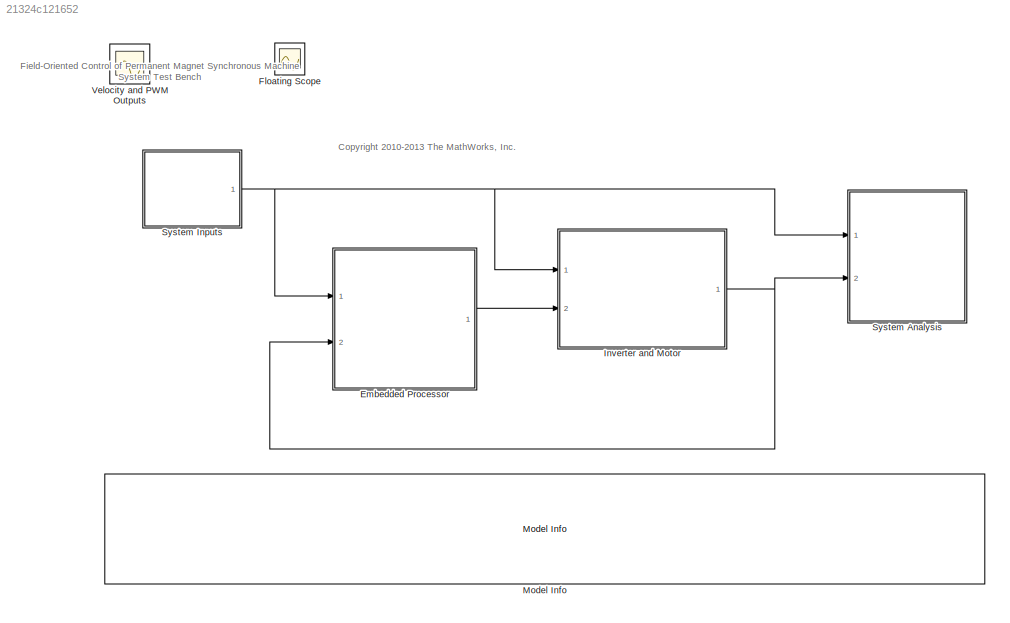
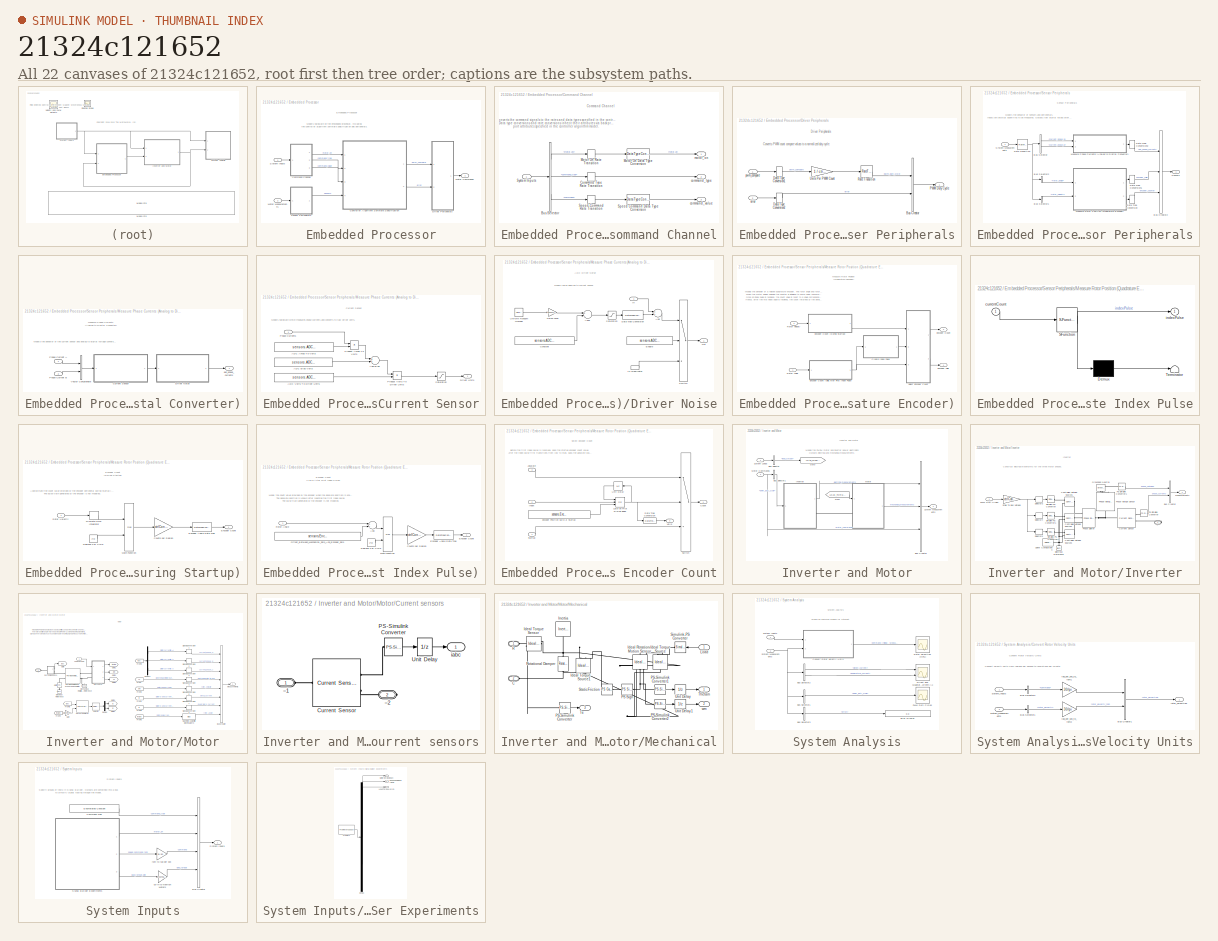
[diagram: thumbnail index - all 22 canvases of the model, root first then tree order]
MODEL slx_21324c121652
KIND model
CONFIG AbsTol = auto
CONFIG EnableMultiTasking = on
CONFIG FixedStep = auto
CONFIG MaxStep = auto
CONFIG MinStep = auto
CONFIG PreLoadFcn = rtwdemo_pmsmfoc_data\n
CONFIG RelTol = 1e-3
CONFIG SampleTimeConstraint = Unconstrained
CONFIG Solver = ode45
CONFIG SolverName = ode45
CONFIG StartFcn = clear executionProfile
CONFIG StartTime = 0.0
CONFIG StopFcn = try \n  AddExecutionProfileToDataInspector();\nend
CONFIG StopTime = 0.3
BLOCK [SubSystem] Embedded Processor
  Ports = [2, 1]
  RequestExecContextInheritance = off
BLOCK [SubSystem] Embedded Processor/Command Channel
  Ports = [1, 3]
  RequestExecContextInheritance = off
BLOCK [BusSelector] Embedded Processor/Command Channel/Bus Selector
  OutputAsBus = off
  OutputSignals = motor_on,command_type,command
  Ports = [1, 3]
BLOCK [RateTransition] Embedded Processor/Command Channel/Command Type Rate Transition
  Deterministic = off
  Integrity = off
BLOCK [DataTypeConversion] Embedded Processor/Command Channel/Motor On Data Type Conversion
  RndMeth = Floor
  SaturateOnIntegerOverflow = off
BLOCK [RateTransition] Embedded Processor/Command Channel/Motor On Rate Transition
  Deterministic = off
  Integrity = off
BLOCK [DataTypeConversion] Embedded Processor/Command Channel/Speed Command Data Type Conversion
  RndMeth = Floor
  SaturateOnIntegerOverflow = off
BLOCK [RateTransition] Embedded Processor/Command Channel/Speed Command Rate Transition
  Deterministic = off
  Integrity = off
BLOCK [Inport] Embedded Processor/Command Channel/System Inputs
  IconDisplay = Port number
BLOCK [Outport] Embedded Processor/Command Channel/command_type
  IconDisplay = Port number
  Port = 2
BLOCK [Outport] Embedded Processor/Command Channel/command_value
  IconDisplay = Port number
  Port = 3
BLOCK [Outport] Embedded Processor/Command Channel/motor_on
  IconDisplay = Port number
BLOCK [ModelReference] Embedded Processor/Controller Algorithm Software Specification
  ModelNameDialog = lp_pmsmfoc
  ModelReferenceVersion = 1.2961
  Ports = [4, 2]
BLOCK [SubSystem] Embedded Processor/Driver Peripherals
  Ports = [2, 1]
  RequestExecContextInheritance = off
BLOCK [BusCreator] Embedded Processor/Driver Peripherals/Bus Creator
  DisplayOption = bar
  InheritFromInputs = on
  Inputs = 2
  Ports = [2, 1]
BLOCK [DataTypeConversion] Embedded Processor/Driver Peripherals/Data Type Conversion1
  RndMeth = Floor
  SaturateOnIntegerOverflow = off
BLOCK [DataTypeConversion] Embedded Processor/Driver Peripherals/Data Type Conversion2
  RndMeth = Floor
  SaturateOnIntegerOverflow = off
BLOCK [Outport] Embedded Processor/Driver Peripherals/PWM Duty Cycle
  IconDisplay = Port number
BLOCK [RateTransition] Embedded Processor/Driver Peripherals/Rate Transition
  Deterministic = off
  Integrity = off
  OutPortSampleTime = 1e-5
BLOCK [Gain] Embedded Processor/Driver Peripherals/Units Per PWM Count
  AttributesFormatString = ------------------------------------------\nGain:\n%<Gain>
  Gain = 1 / ctrlConst.PwmCountsPerRevolution
  OutDataTypeStr = double
  ParamDataTypeStr = double
  SaturateOnIntegerOverflow = off
BLOCK [Inport] Embedded Processor/Driver Peripherals/error
  IconDisplay = Port number
  Port = 2
BLOCK [Inport] Embedded Processor/Driver Peripherals/pwm_compare
  IconDisplay = Port number
BLOCK [Outport] Embedded Processor/Motor Commands
  IconDisplay = Port number
BLOCK [Inport] Embedded Processor/Motor Measurements
  IconDisplay = Port number
  Port = 2
BLOCK [SubSystem] Embedded Processor/Sensor Peripherals
  Description = Elaborate Sensor Models\n\nADC and QEP and Encoder Models
  Ports = [1, 1]
  RequestExecContextInheritance = off
BLOCK [BusCreator] Embedded Processor/Sensor Peripherals/Bus Creator2
  DisplayOption = bar
  InheritFromInputs = on
  Inputs = 3
  OutDataTypeStr = Bus: SENSORS_STRUCT
  Ports = [3, 1]
BLOCK [BusSelector] Embedded Processor/Sensor Peripherals/Bus Selector
  OutputAsBus = off
  OutputSignals = mechanical_measurements.current_phase_a,mechanical_measurements.current_phase_b
  Ports = [1, 2]
BLOCK [BusSelector] Embedded Processor/Sensor Peripherals/Bus Selector1
  OutputAsBus = off
  OutputSignals = mechanical_measurements.rotor_velocity
  Ports = [1, 1]
BLOCK [BusSelector] Embedded Processor/Sensor Peripherals/Bus Selector2
  OutputAsBus = off
  OutputSignals = mechanical_measurements.rotor_angle
  Ports = [1, 1]
BLOCK [DataTypeConversion] Embedded Processor/Sensor Peripherals/Data Type Conversion
  RndMeth = Floor
  SaturateOnIntegerOverflow = off
BLOCK [DataTypeConversion] Embedded Processor/Sensor Peripherals/Data Type Conversion1
  RndMeth = Floor
  SaturateOnIntegerOverflow = off
BLOCK [DataTypeConversion] Embedded Processor/Sensor Peripherals/Data Type Conversion2
  RndMeth = Floor
  SaturateOnIntegerOverflow = off
BLOCK [SubSystem] Embedded Processor/Sensor Peripherals/Measure Phase Currents (Analog to Digital Converter)
  Ports = [2, 1]
  RequestExecContextInheritance = off
BLOCK [SubSystem] Embedded Processor/Sensor Peripherals/Measure Phase Currents (Analog to Digital Converter)/Current Sensor
  Ports = [1, 1]
  RequestExecContextInheritance = off
BLOCK [Constant] Embedded Processor/Sensor Peripherals/Measure Phase Currents (Analog to Digital Converter)/Current Sensor/ADC Amps To Volts
  Value = sensors.ADC.AmpsToVolts
BLOCK [Constant] Embedded Processor/Sensor Peripherals/Measure Phase Currents (Analog to Digital Converter)/Current Sensor/ADC Bias Volts
  Value = sensors.ADC.BiasVolts
BLOCK [Constant] Embedded Processor/Sensor Peripherals/Measure Phase Currents (Analog to Digital Converter)/Current Sensor/ADC Volts To Driver Units
  Value = sensors.ADC.VoltsToDriverUnits
BLOCK [Sum] Embedded Processor/Sensor Peripherals/Measure Phase Currents (Analog to Digital Converter)/Current Sensor/Add Bias
  InputSameDT = off
  OutDataTypeStr = Inherit: Inherit via internal rule
  Ports = [2, 1]
  SaturateOnIntegerOverflow = off
BLOCK [Outport] Embedded Processor/Sensor Peripherals/Measure Phase Currents (Analog to Digital Converter)/Current Sensor/Driver Units
  IconDisplay = Port number
BLOCK [Inport] Embedded Processor/Sensor Peripherals/Measure Phase Currents (Analog to Digital Converter)/Current Sensor/Phase Currents
  IconDisplay = Port number
BLOCK [Product] Embedded Processor/Sensor Peripherals/Measure Phase Currents (Analog to Digital Converter)/Current Sensor/Product Amps To Volts
  InputSameDT = off
  OutDataTypeStr = Inherit: Inherit via internal rule
  Ports = [2, 1]
  SaturateOnIntegerOverflow = off
BLOCK [Product] Embedded Processor/Sensor Peripherals/Measure Phase Currents (Analog to Digital Converter)/Current Sensor/Product Volts To Driver Units
  InputSameDT = off
  OutDataTypeStr = Inherit: Inherit via internal rule
  Ports = [2, 1]
  SaturateOnIntegerOverflow = off
BLOCK [Saturate] Embedded Processor/Sensor Peripherals/Measure Phase Currents (Analog to Digital Converter)/Current Sensor/Saturation
  AttributesFormatString = ----------------------------\nUpper Limit: %<UpperLimit>\nLower Limit: %<LowerLimit>
  InputPortMap = u0
  LowerLimit = 0
  OutDataTypeStr = uint16
  Ports = [1, 1]
  UpperLimit = sensors.ADC.MaxDriverUnits
BLOCK [SubSystem] Embedded Processor/Sensor Peripherals/Measure Phase Currents (Analog to Digital Converter)/Driver Noise
  Ports = [1, 1]
  RequestExecContextInheritance = off
BLOCK [Sum] Embedded Processor/Sensor Peripherals/Measure Phase Currents (Analog to Digital Converter)/Driver Noise/Add
  InputSameDT = off
  OutDataTypeStr = Inherit: Inherit via internal rule
  Ports = [2, 1]
  RndMeth = Convergent
BLOCK [Sum] Embedded Processor/Sensor Peripherals/Measure Phase Currents (Analog to Digital Converter)/Driver Noise/Add1
  InputSameDT = off
  OutDataTypeStr = Inherit: Inherit via internal rule
  Ports = [2, 1]
  RndMeth = Convergent
BLOCK [Constant] Embedded Processor/Sensor Peripherals/Measure Phase Currents (Analog to Digital Converter)/Driver Noise/Constant
  Value = sensors.ADC.NoiseOffsetDriverUnits
BLOCK [DataTypeConversion] Embedded Processor/Sensor Peripherals/Measure Phase Currents (Analog to Digital Converter)/Driver Noise/Data Type Conversion
  OutDataTypeStr = uint16
  RndMeth = Convergent
  SaturateOnIntegerOverflow = off
BLOCK [Constant] Embedded Processor/Sensor Peripherals/Measure Phase Currents (Analog to Digital Converter)/Driver Noise/Enable
  Value = sensors.ADC.NoiseEnable
BLOCK [Inport] Embedded Processor/Sensor Peripherals/Measure Phase Currents (Analog to Digital Converter)/Driver Noise/In
  IconDisplay = Port number
BLOCK [InportShadow] Embedded Processor/Sensor Peripherals/Measure Phase Currents (Analog to Digital Converter)/Driver Noise/In (Duplicate)
  IconDisplay = Port number
BLOCK [Gain] Embedded Processor/Sensor Peripherals/Measure Phase Currents (Analog to Digital Converter)/Driver Noise/Noise Level
  AttributesFormatString = ------------------------------------\n%<Gain>
  Gain = sensors.ADC.NoiseLevelDriverUnits
  OutDataTypeStr = Inherit: Inherit via internal rule
  ParamDataTypeStr = Inherit: Inherit via internal rule
  SaturateOnIntegerOverflow = off
BLOCK [Outport] Embedded Processor/Sensor Peripherals/Measure Phase Currents (Analog to Digital Converter)/Driver Noise/Out
  IconDisplay = Port number
BLOCK [Saturate] Embedded Processor/Sensor Peripherals/Measure Phase Currents (Analog to Digital Converter)/Driver Noise/Saturation
  AttributesFormatString = ----------------------------\nUpper Limit: %<UpperLimit>\nLower Limit: %<LowerLimit>
  InputPortMap = u0
  LowerLimit = 0
  OutDataTypeStr = uint16
  Ports = [1, 1]
  UpperLimit = sensors.ADC.MaxDriverUnits
BLOCK [Switch] Embedded Processor/Sensor Peripherals/Measure Phase Currents (Analog to Digital Converter)/Driver Noise/Switch
  Criteria = u2 ~= 0
  InputSameDT = off
  SaturateOnIntegerOverflow = off
BLOCK [UniformRandomNumber] Embedded Processor/Sensor Peripherals/Measure Phase Currents (Analog to Digital Converter)/Driver Noise/Uniform Random Number
  Maximum = [1 1]
  Minimum = [0 0]
  SampleTime = ctrlConst.TsHi
BLOCK [Inport] Embedded Processor/Sensor Peripherals/Measure Phase Currents (Analog to Digital Converter)/Phase Current A
  IconDisplay = Port number
BLOCK [Inport] Embedded Processor/Sensor Peripherals/Measure Phase Currents (Analog to Digital Converter)/Phase Current B
  IconDisplay = Port number
  Port = 2
BLOCK [Concatenate] Embedded Processor/Sensor Peripherals/Measure Phase Currents (Analog to Digital Converter)/Vector Concatenate
  Ports = [2, 1]
BLOCK [Outport] Embedded Processor/Sensor Peripherals/Measure Phase Currents (Analog to Digital Converter)/adc_phase_currents
  IconDisplay = Port number
  PortDimensions = [2,1]
BLOCK [SubSystem] Embedded Processor/Sensor Peripherals/Measure Rotor Position (Quadrature Encoder)
  Ports = [2, 2]
  RequestExecContextInheritance = off
BLOCK [SubSystem] Embedded Processor/Sensor Peripherals/Measure Rotor Position (Quadrature Encoder)/Create Index Pulse
  ErrorFcn = Stateflow.Translate.translate
  PermitHierarchicalResolution = ExplicitOnly
  Ports = [1, 1]
  RequestExecContextInheritance = off
  SFBlockType = MATLAB Function
  TreatAsAtomicUnit = on
BLOCK [Demux] Embedded Processor/Sensor Peripherals/Measure Rotor Position (Quadrature Encoder)/Create Index Pulse/ Demux 
  Outputs = 1
  Ports = [1, 1]
BLOCK [S-Function] Embedded Processor/Sensor Peripherals/Measure Rotor Position (Quadrature Encoder)/Create Index Pulse/ SFunction 
  EnableBusSupport = on
  FunctionName = sf_sfun
  Parameters = ctrlConst
  PortCounts = [1 2]
  Ports = [1, 2]
  SFcnIsStateOwnerBlock = off
  SFunctionDeploymentMode = off
  Tag = Stateflow S-Function lp_pmsmfoc_system 3
BLOCK [Terminator] Embedded Processor/Sensor Peripherals/Measure Rotor Position (Quadrature Encoder)/Create Index Pulse/ Terminator 
BLOCK [Inport] Embedded Processor/Sensor Peripherals/Measure Rotor Position (Quadrature Encoder)/Create Index Pulse/currentCount
  IconDisplay = Port number
BLOCK [Outport] Embedded Processor/Sensor Peripherals/Measure Rotor Position (Quadrature Encoder)/Create Index Pulse/indexPulse
  IconDisplay = Port number
BLOCK [Outport] Embedded Processor/Sensor Peripherals/Measure Rotor Position (Quadrature Encoder)/Encoder Count
  IconDisplay = Port number
  Port = 2
BLOCK [SubSystem] Embedded Processor/Sensor Peripherals/Measure Rotor Position (Quadrature Encoder)/Encoder Count (During Startup)
  Ports = [1, 1]
  RequestExecContextInheritance = off
BLOCK [Gain] Embedded Processor/Sensor Peripherals/Measure Rotor Position (Quadrature Encoder)/Encoder Count (During Startup)/Counts per Radian
  AttributesFormatString = --------------------------------------------------\nGain:\n%<Gain>
  Gain = ctrlConst.EncoderCountsPerRevolution/(2*pi)
  OutDataTypeStr = Inherit: Inherit via internal rule
  ParamDataTypeStr = Inherit: Inherit via internal rule
  SaturateOnIntegerOverflow = off
BLOCK [DiscreteIntegrator] Embedded Processor/Sensor Peripherals/Measure Rotor Position (Quadrature Encoder)/Encoder Count (During Startup)/Discrete-Time Integrator
  AttributesFormatString = ------------------------------\nInitial Condition: %<InitialCondition>
  ICPrevOutput = DiscIntNeverNeededParam
  ICPrevScaledInput = DiscIntNeverNeededParam
  InitialCondition = sensors.Encoder.InitialAngleRads
  Ports = [1, 1]
  SampleTime = -1
BLOCK [DataTypeConversion] Embedded Processor/Sensor Peripherals/Measure Rotor Position (Quadrature Encoder)/Encoder Count (During Startup)/Encoder Angle Data Type
  OutDataTypeStr = uint16
  RndMeth = Floor
  SaturateOnIntegerOverflow = off
BLOCK [Outport] Embedded Processor/Sensor Peripherals/Measure Rotor Position (Quadrature Encoder)/Encoder Count (During Startup)/Encoder Count
  IconDisplay = Port number
BLOCK [Math] Embedded Processor/Sensor Peripherals/Measure Rotor Position (Quadrature Encoder)/Encoder Count (During Startup)/Math Function
  Operator = mod
  Ports = [2, 1]
BLOCK [Constant] Embedded Processor/Sensor Peripherals/Measure Rotor Position (Quadrature Encoder)/Encoder Count (During Startup)/Radians Per Cycle
  Value = 2*pi
BLOCK [Inport] Embedded Processor/Sensor Peripherals/Measure Rotor Position (Quadrature Encoder)/Encoder Count (During Startup)/Rotor Velocity
  IconDisplay = Port number
BLOCK [SubSystem] Embedded Processor/Sensor Peripherals/Measure Rotor Position (Quadrature Encoder)/Encoder Count (Valid After First Index Pulse)
  Ports = [1, 1]
  RequestExecContextInheritance = off
BLOCK [Sum] Embedded Processor/Sensor Peripherals/Measure Rotor Position (Quadrature Encoder)/Encoder Count (Valid After First Index Pulse)/Add
  InputSameDT = off
  OutDataTypeStr = Inherit: Inherit via internal rule
  Ports = [2, 1]
  SaturateOnIntegerOverflow = off
BLOCK [Gain] Embedded Processor/Sensor Peripherals/Measure Rotor Position (Quadrature Encoder)/Encoder Count (Valid After First Index Pulse)/Counts per Radian
  AttributesFormatString = -------------------------------------------\nGain:\n%<Gain>
  Gain = ctrlConst.EncoderCountsPerRevolution/(2*pi)
  OutDataTypeStr = Inherit: Inherit via internal rule
  ParamDataTypeStr = Inherit: Inherit via internal rule
  SaturateOnIntegerOverflow = off
BLOCK [DataTypeConversion] Embedded Processor/Sensor Peripherals/Measure Rotor Position (Quadrature Encoder)/Encoder Count (Valid After First Index Pulse)/Encoder Angle Data Type
  OutDataTypeStr = uint16
  RndMeth = Floor
  SaturateOnIntegerOverflow = off
BLOCK [Outport] Embedded Processor/Sensor Peripherals/Measure Rotor Position (Quadrature Encoder)/Encoder Count (Valid After First Index Pulse)/Encoder Count
  IconDisplay = Port number
BLOCK [Math] Embedded Processor/Sensor Peripherals/Measure Rotor Position (Quadrature Encoder)/Encoder Count (Valid After First Index Pulse)/Math Function
  Operator = mod
  Ports = [2, 1]
BLOCK [Constant] Embedded Processor/Sensor Peripherals/Measure Rotor Position (Quadrature Encoder)/Encoder Count (Valid After First Index Pulse)/Offset_Between_Mechanical_Zero_And_Encoder_Zero
  Value = sensors.Encoder.MechanicalToEncoderZeroOffsetRads
BLOCK [Constant] Embedded Processor/Sensor Peripherals/Measure Rotor Position (Quadrature Encoder)/Encoder Count (Valid After First Index Pulse)/Radians Per Cycle
  Value = 2*pi
BLOCK [Inport] Embedded Processor/Sensor Peripherals/Measure Rotor Position (Quadrature Encoder)/Encoder Count (Valid After First Index Pulse)/Rotor Angle
  IconDisplay = Port number
BLOCK [Outport] Embedded Processor/Sensor Peripherals/Measure Rotor Position (Quadrature Encoder)/Encoder Valid
  IconDisplay = Port number
BLOCK [Inport] Embedded Processor/Sensor Peripherals/Measure Rotor Position (Quadrature Encoder)/Rotor Angle
  IconDisplay = Port number
BLOCK [Inport] Embedded Processor/Sensor Peripherals/Measure Rotor Position (Quadrature Encoder)/Rotor Velocity
  IconDisplay = Port number
  Port = 2
BLOCK [SubSystem] Embedded Processor/Sensor Peripherals/Measure Rotor Position (Quadrature Encoder)/Select Encoder Count
  Ports = [3, 2]
  RequestExecContextInheritance = off
BLOCK [Inport] Embedded Processor/Sensor Peripherals/Measure Rotor Position (Quadrature Encoder)/Select Encoder Count/Absolute
  IconDisplay = Port number
  Port = 3
BLOCK [Outport] Embedded Processor/Sensor Peripherals/Measure Rotor Position (Quadrature Encoder)/Select Encoder Count/Count
  IconDisplay = Port number
BLOCK [DataTypeConversion] Embedded Processor/Sensor Peripherals/Measure Rotor Position (Quadrature Encoder)/Select Encoder Count/Data Type Conversion
  OutDataTypeStr = uint16
  RndMeth = Floor
  SaturateOnIntegerOverflow = off
BLOCK [Constant] Embedded Processor/Sensor Peripherals/Measure Rotor Position (Quadrature Encoder)/Select Encoder Count/Encoder Position Valid At Startup
  Value = sensors.Encoder.PositionValidAtStartup
BLOCK [Inport] Embedded Processor/Sensor Peripherals/Measure Rotor Position (Quadrature Encoder)/Select Encoder Count/Index
  IconDisplay = Port number
  Port = 2
BLOCK [Logic] Embedded Processor/Sensor Peripherals/Measure Rotor Position (Quadrature Encoder)/Select Encoder Count/Latch on First Rising Edge
  AllPortsSameDT = off
  IconShape = distinctive
  Inputs = 3
  Operator = OR
  OutDataTypeStr = boolean
  Ports = [3, 1]
BLOCK [Inport] Embedded Processor/Sensor Peripherals/Measure Rotor Position (Quadrature Encoder)/Select Encoder Count/Startup
  IconDisplay = Port number
BLOCK [Switch] Embedded Processor/Sensor Peripherals/Measure Rotor Position (Quadrature Encoder)/Select Encoder Count/Switch
  Criteria = u2 ~= 0
  InputSameDT = off
  SaturateOnIntegerOverflow = off
BLOCK [UnitDelay] Embedded Processor/Sensor Peripherals/Measure Rotor Position (Quadrature Encoder)/Select Encoder Count/Unit Delay
  InputProcessing = Elements as channels (sample based)
  SampleTime = -1
BLOCK [Outport] Embedded Processor/Sensor Peripherals/Measure Rotor Position (Quadrature Encoder)/Select Encoder Count/Valid
  IconDisplay = Port number
  Port = 2
BLOCK [RateTransition] Embedded Processor/Sensor Peripherals/Rate Transition
  OutPortSampleTime = 40e-6
BLOCK [Outport] Embedded Processor/Sensor Peripherals/Sensors
  IconDisplay = Port number
BLOCK [Inport] Embedded Processor/Sensor Peripherals/System Measurements
  IconDisplay = Port number
BLOCK [Inport] Embedded Processor/System Inputs
  IconDisplay = Port number
BLOCK [Scope] Floating Scope
  Floating = off
  IOType = viewer
  NumInputPorts = 1
  Ports = []
  ScopeSpecificationString = Simulink.scopes.TimeScopeBlockCfg('CurrentConfiguration', extmgr.ConfigurationSet(extmgr.Configuration('Core','General UI',true),extmgr.Configuration('Core','Source UI',true),extmgr.Configuration('Sources','WiredSimulink',true,'DataLoggingSaveFormat','StructureWithTime','DataLoggingLimitDataPoints',true,'DataLoggingDecimation','1'),extmgr.Configuration('Visuals','Time Domain',true,'DisplayProperty...<+979ch>
BLOCK [SubSystem] Inverter and Motor
  Ports = [2, 1]
  RequestExecContextInheritance = off
BLOCK [BusCreator] Inverter and Motor/Bus Creator
  DisplayOption = bar
  InheritFromInputs = on
  Inputs = 3
  Ports = [3, 1]
BLOCK [BusSelector] Inverter and Motor/Bus Selector
  OutputAsBus = off
  OutputSignals = load_torque
  Ports = [1, 1]
BLOCK [BusSelector] Inverter and Motor/Bus Selector1
  OutputAsBus = off
  OutputSignals = pwm_duty_cycle
  Ports = [1, 1]
BLOCK [From] Inverter and Motor/From
  GotoTag = LOAD_TORQUE
BLOCK [Goto] Inverter and Motor/Goto
  GotoTag = LOAD_TORQUE
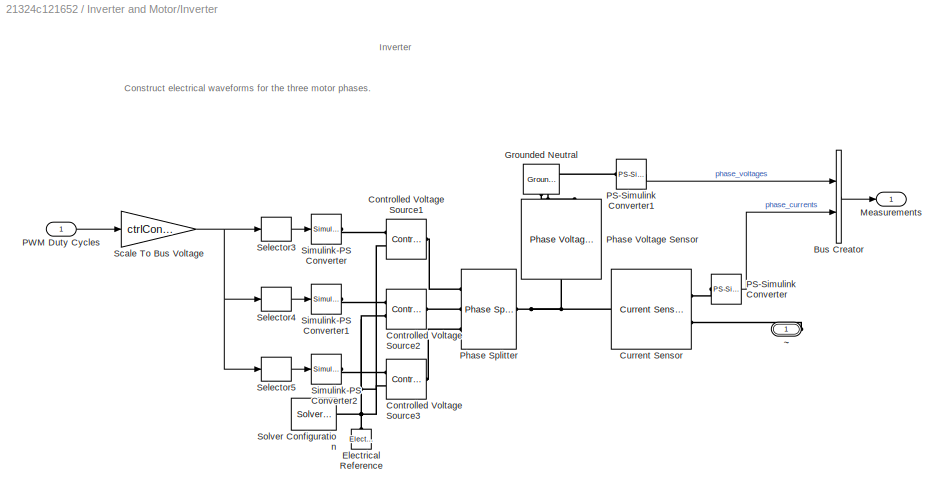
BLOCK [SubSystem] Inverter and Motor/Inverter
  Ports = [1, 1, 0, 0, 0, 0, 1]
  RequestExecContextInheritance = off
BLOCK [BusCreator] Inverter and Motor/Inverter/Bus Creator
  DisplayOption = bar
  InheritFromInputs = on
  Inputs = 2
  Ports = [2, 1]
BLOCK [Reference] Inverter and Motor/Inverter/Controlled Voltage Source1  REF=fl_lib/Electrical/Electrical Sources/Controlled Voltage
Source
  Ports = [0, 0, 0, 0, 0, 1, 2]
  SourceBlock = fl_lib/Electrical/Electrical Sources/Controlled Voltage\nSource
  SourceProductBaseCode = SS
  SourceProductName = Simscape
  SourceType = Controlled Voltage\nSource
BLOCK [Reference] Inverter and Motor/Inverter/Controlled Voltage Source2  REF=fl_lib/Electrical/Electrical Sources/Controlled Voltage
Source
  Ports = [0, 0, 0, 0, 0, 1, 2]
  SourceBlock = fl_lib/Electrical/Electrical Sources/Controlled Voltage\nSource
  SourceProductBaseCode = SS
  SourceProductName = Simscape
  SourceType = Controlled Voltage\nSource
BLOCK [Reference] Inverter and Motor/Inverter/Controlled Voltage Source3  REF=fl_lib/Electrical/Electrical Sources/Controlled Voltage
Source
  Ports = [0, 0, 0, 0, 0, 1, 2]
  SourceBlock = fl_lib/Electrical/Electrical Sources/Controlled Voltage\nSource
  SourceProductBaseCode = SS
  SourceProductName = Simscape
  SourceType = Controlled Voltage\nSource
BLOCK [Reference] Inverter and Motor/Inverter/Current Sensor  REF=pe_lib/Sensors/Current Sensor
  Ports = [0, 0, 0, 0, 0, 1, 2]
  SourceBlock = pe_lib/Sensors/Current Sensor
  SourceProductBaseCode = PS
  SourceProductName = Simscape Electrical
  SourceType = Current Sensor
BLOCK [Reference] Inverter and Motor/Inverter/Electrical Reference  REF=fl_lib/Electrical/Electrical Elements/Electrical Reference
  Ports = [0, 0, 0, 0, 0, 1]
  SourceBlock = fl_lib/Electrical/Electrical Elements/Electrical Reference
  SourceProductBaseCode = SS
  SourceProductName = Simscape
  SourceType = Electrical Reference
BLOCK [Reference] Inverter and Motor/Inverter/Grounded Neutral  REF=pe_lib/Connections/Grounded Neutral
  Ports = [0, 0, 0, 0, 0, 1]
  SourceBlock = pe_lib/Connections/Grounded Neutral
  SourceProductBaseCode = PS
  SourceProductName = Simscape Electrical
  SourceType = Grounded Neutral
BLOCK [Outport] Inverter and Motor/Inverter/Measurements
  IconDisplay = Port number
BLOCK [Reference] Inverter and Motor/Inverter/PS-Simulink Converter  REF=nesl_utility/PS-Simulink
Converter
  Ports = [0, 1, 0, 0, 0, 1]
  SourceBlock = nesl_utility/PS-Simulink\nConverter
  SourceProductBaseCode = SS
  SourceProductName = Simscape
  SourceType = PS-Simulink\nConverter
BLOCK [Reference] Inverter and Motor/Inverter/PS-Simulink Converter1  REF=nesl_utility/PS-Simulink
Converter
  Ports = [0, 1, 0, 0, 0, 1]
  SourceBlock = nesl_utility/PS-Simulink\nConverter
  SourceProductBaseCode = SS
  SourceProductName = Simscape
  SourceType = PS-Simulink\nConverter
BLOCK [Inport] Inverter and Motor/Inverter/PWM Duty Cycles
  IconDisplay = Port number
BLOCK [Reference] Inverter and Motor/Inverter/Phase Splitter  REF=pe_lib/Connections/Phase Splitter
  Ports = [0, 0, 0, 0, 0, 1, 3]
  SourceBlock = pe_lib/Connections/Phase Splitter
  SourceProductBaseCode = PS
  SourceProductName = Simscape Electrical
  SourceType = Phase Splitter
BLOCK [Reference] Inverter and Motor/Inverter/Phase Voltage Sensor  REF=pe_lib/Sensors/Phase Voltage Sensor
  Ports = [0, 0, 0, 0, 0, 1, 2]
  SourceBlock = pe_lib/Sensors/Phase Voltage Sensor
  SourceProductBaseCode = PS
  SourceProductName = Simscape Electrical
  SourceType = Phase Voltage Sensor
BLOCK [Gain] Inverter and Motor/Inverter/Scale To Bus Voltage
  AttributesFormatString = ------------------------------\nGain:\n%<Gain>
  Gain = ctrlConst.BusVoltage
  OutDataTypeStr = double
  ParamDataTypeStr = double
  SaturateOnIntegerOverflow = off
BLOCK [Selector] Inverter and Motor/Inverter/Selector3
  IndexOptions = Index vector (dialog)
  Indices = [1]
  InputPortWidth = 3
  OutputSizes = 1
  Ports = [1, 1]
BLOCK [Selector] Inverter and Motor/Inverter/Selector4
  IndexOptions = Index vector (dialog)
  Indices = 2
  InputPortWidth = 3
  OutputSizes = 1
  Ports = [1, 1]
BLOCK [Selector] Inverter and Motor/Inverter/Selector5
  IndexOptions = Index vector (dialog)
  Indices = 3
  InputPortWidth = 3
  OutputSizes = 1
  Ports = [1, 1]
BLOCK [Reference] Inverter and Motor/Inverter/Simulink-PS Converter  REF=nesl_utility/Simulink-PS
Converter
  Ports = [1, 0, 0, 0, 0, 0, 1]
  SourceBlock = nesl_utility/Simulink-PS\nConverter
  SourceProductBaseCode = SS
  SourceProductName = Simscape
  SourceType = Simulink-PS\nConverter
BLOCK [Reference] Inverter and Motor/Inverter/Simulink-PS Converter1  REF=nesl_utility/Simulink-PS
Converter
  Ports = [1, 0, 0, 0, 0, 0, 1]
  SourceBlock = nesl_utility/Simulink-PS\nConverter
  SourceProductBaseCode = SS
  SourceProductName = Simscape
  SourceType = Simulink-PS\nConverter
BLOCK [Reference] Inverter and Motor/Inverter/Simulink-PS Converter2  REF=nesl_utility/Simulink-PS
Converter
  Ports = [1, 0, 0, 0, 0, 0, 1]
  SourceBlock = nesl_utility/Simulink-PS\nConverter
  SourceProductBaseCode = SS
  SourceProductName = Simscape
  SourceType = Simulink-PS\nConverter
BLOCK [Reference] Inverter and Motor/Inverter/Solver Configuration  REF=nesl_utility/Solver
Configuration
  Ports = [0, 0, 0, 0, 0, 0, 1]
  SourceBlock = nesl_utility/Solver\nConfiguration
  SourceProductBaseCode = SS
  SourceProductName = Simscape
  SourceType = Solver\nConfiguration
BLOCK [PMIOPort] Inverter and Motor/Inverter/~
  Side = Right
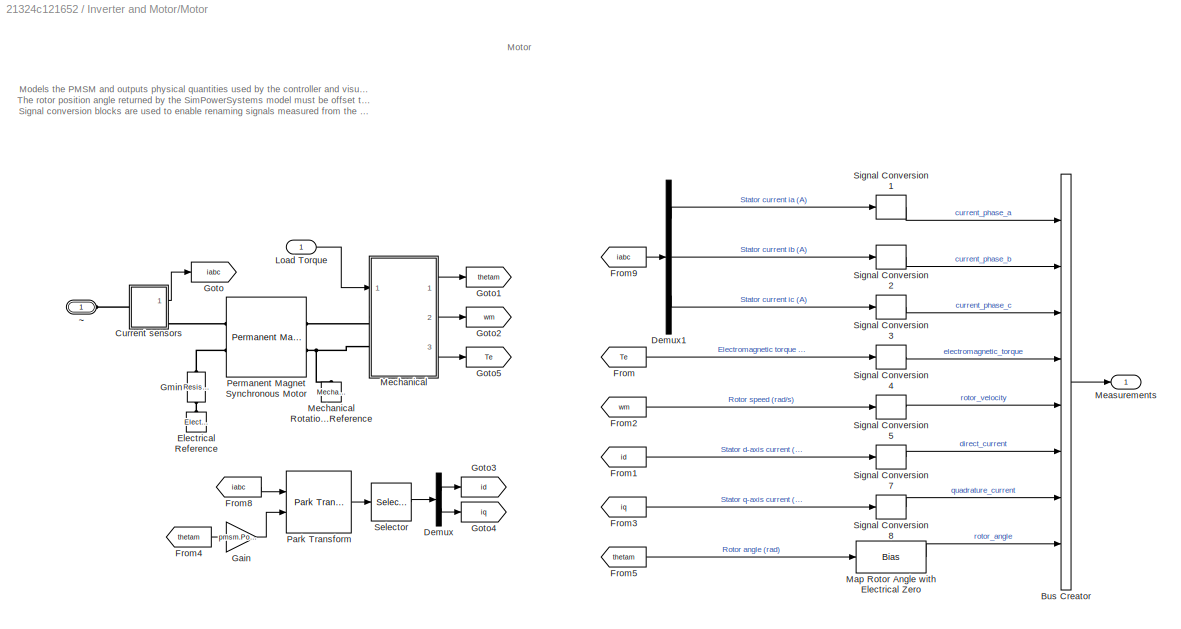
BLOCK [SubSystem] Inverter and Motor/Motor
  Ports = [1, 1, 0, 0, 0, 1]
  RequestExecContextInheritance = off
BLOCK [Inport] Inverter and Motor/Motor Commands
  IconDisplay = Port number
  Port = 2
BLOCK [BusCreator] Inverter and Motor/Motor/Bus Creator
  DisplayOption = bar
  InheritFromInputs = on
  Inputs = 8
  Ports = [8, 1]
BLOCK [SubSystem] Inverter and Motor/Motor/Current sensors
  Ports = [0, 1, 0, 0, 0, 1, 1]
  RequestExecContextInheritance = off
BLOCK [Reference] Inverter and Motor/Motor/Current sensors/Current Sensor  REF=pe_lib/Sensors/Current Sensor
  Ports = [0, 0, 0, 0, 0, 1, 2]
  SourceBlock = pe_lib/Sensors/Current Sensor
  SourceProductBaseCode = PS
  SourceProductName = Simscape Electrical
  SourceType = Current Sensor
BLOCK [Reference] Inverter and Motor/Motor/Current sensors/PS-Simulink Converter  REF=nesl_utility/PS-Simulink
Converter
  Ports = [0, 1, 0, 0, 0, 1]
  SourceBlock = nesl_utility/PS-Simulink\nConverter
  SourceProductBaseCode = SS
  SourceProductName = Simscape
  SourceType = PS-Simulink\nConverter
BLOCK [UnitDelay] Inverter and Motor/Motor/Current sensors/Unit Delay
  InputProcessing = Elements as channels (sample based)
  SampleTime = -1
BLOCK [Outport] Inverter and Motor/Motor/Current sensors/iabc
  IconDisplay = Port number
BLOCK [PMIOPort] Inverter and Motor/Motor/Current sensors/~1
  Side = Left
BLOCK [PMIOPort] Inverter and Motor/Motor/Current sensors/~2
  Port = 2
  Side = Right
BLOCK [Demux] Inverter and Motor/Motor/Demux
  DisplayOption = bar
  Outputs = 2
  Ports = [1, 2]
BLOCK [Demux] Inverter and Motor/Motor/Demux1
  DisplayOption = bar
  Outputs = 3
  Ports = [1, 3]
BLOCK [Reference] Inverter and Motor/Motor/Electrical Reference  REF=fl_lib/Electrical/Electrical Elements/Electrical Reference
  Ports = [0, 0, 0, 0, 0, 1]
  SourceBlock = fl_lib/Electrical/Electrical Elements/Electrical Reference
  SourceProductBaseCode = SS
  SourceProductName = Simscape
  SourceType = Electrical Reference
BLOCK [From] Inverter and Motor/Motor/From
  GotoTag = Te
BLOCK [From] Inverter and Motor/Motor/From1
  GotoTag = id
BLOCK [From] Inverter and Motor/Motor/From2
  GotoTag = wm
BLOCK [From] Inverter and Motor/Motor/From3
  GotoTag = iq
BLOCK [From] Inverter and Motor/Motor/From4
  GotoTag = thetam
BLOCK [From] Inverter and Motor/Motor/From5
  GotoTag = thetam
BLOCK [From] Inverter and Motor/Motor/From8
  GotoTag = iabc
BLOCK [From] Inverter and Motor/Motor/From9
  GotoTag = iabc
BLOCK [Gain] Inverter and Motor/Motor/Gain
  Gain = pmsm.PolePairs
  OutDataTypeStr = Inherit: Inherit via internal rule
  ParamDataTypeStr = Inherit: Inherit via internal rule
  SaturateOnIntegerOverflow = off
BLOCK [Reference] Inverter and Motor/Motor/Gmin  REF=fl_lib/Electrical/Electrical Elements/Resistor
  Ports = [0, 0, 0, 0, 0, 1, 1]
  SourceBlock = fl_lib/Electrical/Electrical Elements/Resistor
  SourceProductBaseCode = SS
  SourceProductName = Simscape
  SourceType = Resistor
BLOCK [Goto] Inverter and Motor/Motor/Goto
  GotoTag = iabc
BLOCK [Goto] Inverter and Motor/Motor/Goto1
  GotoTag = thetam
BLOCK [Goto] Inverter and Motor/Motor/Goto2
  GotoTag = wm
BLOCK [Goto] Inverter and Motor/Motor/Goto3
  GotoTag = id
BLOCK [Goto] Inverter and Motor/Motor/Goto4
  GotoTag = iq
BLOCK [Goto] Inverter and Motor/Motor/Goto5
  GotoTag = Te
BLOCK [Inport] Inverter and Motor/Motor/Load Torque 
  IconDisplay = Port number
BLOCK [Bias] Inverter and Motor/Motor/Map Rotor Angle with Electrical Zero
  AttributesFormatString = ----------------------------------------\n%<Bias>
  Bias = pmsm.ElectricalZeroPhaseOffsetRads
  SaturateOnIntegerOverflow = off
BLOCK [Outport] Inverter and Motor/Motor/Measurements
  IconDisplay = Port number
BLOCK [SubSystem] Inverter and Motor/Motor/Mechanical
  Ports = [1, 3, 0, 0, 0, 2]
  RequestExecContextInheritance = off
BLOCK [Reference] Inverter and Motor/Motor/Mechanical Rotational Reference  REF=fl_lib/Mechanical/Rotational Elements/Mechanical
Rotational Reference
  Ports = [0, 0, 0, 0, 0, 1]
  SourceBlock = fl_lib/Mechanical/Rotational Elements/Mechanical\nRotational Reference
  SourceProductBaseCode = SS
  SourceProductName = Simscape
  SourceType = Mechanical\nRotational Reference
BLOCK [PMIOPort] Inverter and Motor/Motor/Mechanical/C
  Port = 2
  Side = Left
BLOCK [Reference] Inverter and Motor/Motor/Mechanical/Ideal Rotational Motion Sensor  REF=fl_lib/Mechanical/Mechanical Sensors/Ideal Rotational
Motion Sensor
  Ports = [0, 0, 0, 0, 0, 1, 3]
  SourceBlock = fl_lib/Mechanical/Mechanical Sensors/Ideal Rotational\nMotion Sensor
  SourceProductName = Foundation Library
  SourceType = Ideal Rotational\nMotion Sensor
BLOCK [Reference] Inverter and Motor/Motor/Mechanical/Ideal Torque Sensor  REF=fl_lib/Mechanical/Mechanical Sensors/Ideal Torque Sensor
  Ports = [0, 0, 0, 0, 0, 1, 2]
  SourceBlock = fl_lib/Mechanical/Mechanical Sensors/Ideal Torque Sensor
  SourceProductBaseCode = SS
  SourceProductName = Simscape
  SourceType = Ideal Torque Sensor
BLOCK [Reference] Inverter and Motor/Motor/Mechanical/Ideal Torque Source  REF=fl_lib/Mechanical/Mechanical Sources/Ideal Torque Source
  Ports = [0, 0, 0, 0, 0, 1, 2]
  SourceBlock = fl_lib/Mechanical/Mechanical Sources/Ideal Torque Source
  SourceProductBaseCode = SS
  SourceProductName = Simscape
  SourceType = Ideal Torque Source
BLOCK [Reference] Inverter and Motor/Motor/Mechanical/Ideal Torque Source1  REF=fl_lib/Mechanical/Mechanical Sources/Ideal Torque Source
  Ports = [0, 0, 0, 0, 0, 1, 2]
  SourceBlock = fl_lib/Mechanical/Mechanical Sources/Ideal Torque Source
  SourceProductBaseCode = SS
  SourceProductName = Simscape
  SourceType = Ideal Torque Source
BLOCK [Reference] Inverter and Motor/Motor/Mechanical/Inertia  REF=fl_lib/Mechanical/Rotational Elements/Inertia
  Ports = [0, 0, 0, 0, 0, 1]
  SourceBlock = fl_lib/Mechanical/Rotational Elements/Inertia
  SourceProductName = Foundation Library
  SourceType = Inertia
BLOCK [Inport] Inverter and Motor/Motor/Mechanical/Load
  IconDisplay = Port number
BLOCK [Reference] Inverter and Motor/Motor/Mechanical/PS Sign  REF=fl_lib/Physical Signals/Nonlinear Operators/PS Sign
  Ports = [0, 0, 0, 0, 0, 1, 1]
  SourceBlock = fl_lib/Physical Signals/Nonlinear Operators/PS Sign
  SourceProductBaseCode = SS
  SourceProductName = Simscape
  SourceType = PS Sign
BLOCK [Reference] Inverter and Motor/Motor/Mechanical/PS-Simulink Converter  REF=nesl_utility/PS-Simulink
Converter
  Ports = [0, 1, 0, 0, 0, 1]
  SourceBlock = nesl_utility/PS-Simulink\nConverter
  SourceProductBaseCode = SS
  SourceProductName = Simscape
  SourceType = PS-Simulink\nConverter
BLOCK [Reference] Inverter and Motor/Motor/Mechanical/PS-Simulink Converter1  REF=nesl_utility/PS-Simulink
Converter
  Ports = [0, 1, 0, 0, 0, 1]
  SourceBlock = nesl_utility/PS-Simulink\nConverter
  SourceProductBaseCode = SS
  SourceProductName = Simscape
  SourceType = PS-Simulink\nConverter
BLOCK [Reference] Inverter and Motor/Motor/Mechanical/PS-Simulink Converter2  REF=nesl_utility/PS-Simulink
Converter
  Ports = [0, 1, 0, 0, 0, 1]
  SourceBlock = nesl_utility/PS-Simulink\nConverter
  SourceProductBaseCode = SS
  SourceProductName = Simscape
  SourceType = PS-Simulink\nConverter
BLOCK [PMIOPort] Inverter and Motor/Motor/Mechanical/R
  Side = Left
BLOCK [Reference] Inverter and Motor/Motor/Mechanical/Rotational Damper  REF=fl_lib/Mechanical/Rotational Elements/Rotational Damper
  Ports = [0, 0, 0, 0, 0, 1, 1]
  SourceBlock = fl_lib/Mechanical/Rotational Elements/Rotational Damper
  SourceProductBaseCode = SS
  SourceProductName = Simscape
  SourceType = Rotational Damper
BLOCK [Reference] Inverter and Motor/Motor/Mechanical/Simulink-PS Converter  REF=nesl_utility/Simulink-PS
Converter
  Ports = [1, 0, 0, 0, 0, 0, 1]
  SourceBlock = nesl_utility/Simulink-PS\nConverter
  SourceProductBaseCode = SS
  SourceProductName = Simscape
  SourceType = Simulink-PS\nConverter
BLOCK [Reference] Inverter and Motor/Motor/Mechanical/StaticFriction  REF=fl_lib/Physical Signals/Functions/PS Gain
  Ports = [0, 0, 0, 0, 0, 1, 1]
  SourceBlock = fl_lib/Physical Signals/Functions/PS Gain
  SourceProductBaseCode = SS
  SourceProductName = Simscape
  SourceType = PS Gain
BLOCK [Outport] Inverter and Motor/Motor/Mechanical/Te
  IconDisplay = Port number
  Port = 3
BLOCK [Outport] Inverter and Motor/Motor/Mechanical/Thetam
  IconDisplay = Port number
BLOCK [UnitDelay] Inverter and Motor/Motor/Mechanical/Unit Delay
  InitialCondition = pmsm.ThetaInitDegrees/180*pi
  InputProcessing = Elements as channels (sample based)
  SampleTime = -1
BLOCK [UnitDelay] Inverter and Motor/Motor/Mechanical/Unit Delay1
  InputProcessing = Elements as channels (sample based)
  SampleTime = -1
BLOCK [Outport] Inverter and Motor/Motor/Mechanical/wm
  IconDisplay = Port number
  Port = 2
BLOCK [Reference] Inverter and Motor/Motor/Park Transform  REF=peTransforms/Park Transform
  Ports = [2, 1]
  SourceBlock = peTransforms/Park Transform
  SourceType = Park Transform
BLOCK [Reference] Inverter and Motor/Motor/Permanent Magnet Synchronous Motor  REF=pe_lib/Machines/Permanent Magnet
Rotor/Permanent Magnet
Synchronous Motor
  Ports = [0, 0, 0, 0, 0, 2, 2]
  SourceBlock = pe_lib/Machines/Permanent Magnet\nRotor/Permanent Magnet\nSynchronous Motor
  SourceProductBaseCode = PS
  SourceProductName = Simscape Electrical
  SourceType = Permanent Magnet\nSynchronous Motor
BLOCK [Selector] Inverter and Motor/Motor/Selector
  IndexOptions = Index vector (dialog)
  Indices = [1 2]
  InputPortWidth = 3
  OutputSizes = 1
  Ports = [1, 1]
BLOCK [SignalConversion] Inverter and Motor/Motor/Signal Conversion 1
  ConversionOutput = Contiguous copy
  OverrideOpt = off
BLOCK [SignalConversion] Inverter and Motor/Motor/Signal Conversion 2
  ConversionOutput = Contiguous copy
  OverrideOpt = off
BLOCK [SignalConversion] Inverter and Motor/Motor/Signal Conversion 3
  ConversionOutput = Contiguous copy
  OverrideOpt = off
BLOCK [SignalConversion] Inverter and Motor/Motor/Signal Conversion 4
  ConversionOutput = Contiguous copy
  OverrideOpt = off
BLOCK [SignalConversion] Inverter and Motor/Motor/Signal Conversion 5
  ConversionOutput = Contiguous copy
  OverrideOpt = off
BLOCK [SignalConversion] Inverter and Motor/Motor/Signal Conversion 7
  ConversionOutput = Contiguous copy
  OverrideOpt = off
BLOCK [SignalConversion] Inverter and Motor/Motor/Signal Conversion 8
  ConversionOutput = Contiguous copy
  OverrideOpt = off
BLOCK [PMIOPort] Inverter and Motor/Motor/~
  Side = Left
BLOCK [Inport] Inverter and Motor/System Loads
  IconDisplay = Port number
BLOCK [Outport] Inverter and Motor/System Measurements
  IconDisplay = Port number
BLOCK [Reference] Model Info  REF=simulink/Model-Wide
Utilities/Model Info
  Ports = []
  SourceBlock = simulink/Model-Wide\nUtilities/Model Info
  SourceProductBaseCode = SL
  SourceProductName = Simulink
  SourceType = CMBlock
BLOCK [SubSystem] System Analysis
  Description = System Analysis for Speed Control Design\n\nAnalyize and plot signals used to analyize performance of\nspeed  control designs
  Ports = [2]
  RequestExecContextInheritance = off
BLOCK [BusSelector] System Analysis/Bus Selector1
  OutputAsBus = off
  OutputSignals = motor_commands.pwm_duty_cycle
  Ports = [1, 1]
BLOCK [BusSelector] System Analysis/Bus Selector2
  OutputAsBus = off
  OutputSignals = mechanical_measurements.direct_current,mechanical_measurements.quadrature_current
  Ports = [1, 2]
BLOCK [BusSelector] System Analysis/Bus Selector3
  OutputAsBus = off
  OutputSignals = motor_commands.error
  Ports = [1, 1]
BLOCK [SubSystem] System Analysis/Convert Rotor Velocity Units
  Ports = [2, 1]
  RequestExecContextInheritance = off
BLOCK [BusCreator] System Analysis/Convert Rotor Velocity Units/Bus Creator1
  DisplayOption = bar
  InheritFromInputs = on
  Inputs = 2
  Ports = [2, 1]
BLOCK [BusSelector] System Analysis/Convert Rotor Velocity Units/Bus Selector1
  OutputAsBus = off
  OutputSignals = mechanical_measurements.rotor_velocity
  Ports = [1, 1]
BLOCK [BusSelector] System Analysis/Convert Rotor Velocity Units/Bus Selector2
  OutputAsBus = off
  OutputSignals = command
  Ports = [1, 1]
BLOCK [Gain] System Analysis/Convert Rotor Velocity Units/rad_per_sec_to_rpm1
  Gain = 30/pi
  OutDataTypeStr = Inherit: Inherit via internal rule
  ParamDataTypeStr = Inherit: Inherit via internal rule
  SaturateOnIntegerOverflow = off
BLOCK [Gain] System Analysis/Convert Rotor Velocity Units/rad_per_sec_to_rpm2
  Gain = 30/pi
  OutDataTypeStr = Inherit: Inherit via internal rule
  ParamDataTypeStr = Inherit: Inherit via internal rule
  SaturateOnIntegerOverflow = off
BLOCK [Outport] System Analysis/Convert Rotor Velocity Units/rotor_velocities
  IconDisplay = Port number
BLOCK [Inport] System Analysis/Convert Rotor Velocity Units/system_inputs
  IconDisplay = Port number
BLOCK [Inport] System Analysis/Convert Rotor Velocity Units/system_measurements
  IconDisplay = Port number
  Port = 2
BLOCK [Scope] System Analysis/Direct and Quadrature Currents (A)
  Floating = off
  NumInputPorts = 2
  Ports = [2]
  ScopeSpecificationString = Simulink.scopes.TimeScopeBlockCfg('CurrentConfiguration', extmgr.ConfigurationSet(extmgr.Configuration('Core','General UI',true),extmgr.Configuration('Core','Source UI',true),extmgr.Configuration('Sources','WiredSimulink',true,'DataLoggingVariableName','ScopeData3','DataLoggingSaveFormat','StructureWithTime','DataLoggingDecimation','1'),extmgr.Configuration('Visuals','Time Domain',true,'Serialized...<+2417ch>
BLOCK [Display] System Analysis/Error Display
  Decimation = 1
  Ports = [1]
BLOCK [Scope] System Analysis/PWM Duty Cycles
  Floating = off
  NumInputPorts = 1
  Ports = [1]
  ScopeSpecificationString = Simulink.scopes.TimeScopeBlockCfg('CurrentConfiguration', extmgr.ConfigurationSet(extmgr.Configuration('Core','General UI',true),extmgr.Configuration('Core','Source UI',true),extmgr.Configuration('Sources','WiredSimulink',true,'PointsPerSignal',60000,'DataLoggingVariableName','ScopeData2','DataLoggingSaveFormat','StructureWithTime','DataLoggingDecimation','1'),extmgr.Configuration('Visuals','Time ...<+1866ch>
BLOCK [Scope] System Analysis/Rotor Velocities (RPM)
  Floating = off
  NumInputPorts = 1
  Ports = [1]
  ScopeSpecificationString = Simulink.scopes.TimeScopeBlockCfg('CurrentConfiguration', extmgr.ConfigurationSet(extmgr.Configuration('Core','General UI',true),extmgr.Configuration('Core','Source UI',true),extmgr.Configuration('Sources','WiredSimulink',true,'DataLoggingVariableName','ScopeData1','DataLoggingDecimation','1','DataLoggingSaveFormat','StructureWithTime'),extmgr.Configuration('Visuals','Time Domain',true,'Serialized...<+1698ch>
BLOCK [Inport] System Analysis/System Inputs
  IconDisplay = Port number
BLOCK [Inport] System Analysis/System Measurements
  IconDisplay = Port number
  Port = 2
BLOCK [SubSystem] System Inputs
  Ports = [0, 1]
  RequestExecContextInheritance = off
BLOCK [BusCreator] System Inputs/Bus Creator
  DisplayOption = bar
  InheritFromInputs = on
  Inputs = 4
  Ports = [4, 1]
BLOCK [Reference] System Inputs/Command Type  REF=simulink/Sources/Enumerated
Constant
  Ports = [0, 1]
  SourceBlock = simulink/Sources/Enumerated\nConstant
  SourceProductBaseCode = SL
  SourceProductName = Simulink
  SourceType = Enumerated Constant
BLOCK [SubSystem] System Inputs/Signal Builder Experiments
  ClipboardFcn = sigbuilder_block('clipboard');
  CloseFcn = sigbuilder_block('close');
  ContinueFcn = sigbuilder_block('continue')
  CopyFcn = sigbuilder_block('copy');
  DeleteFcn = sigbuilder_block('delete');
  LoadFcn = sigbuilder_block('load');
  MaskHideContents = on
  ModelCloseFcn = sigbuilder_block('modelClose');
  NameChangeFcn = sigbuilder_block('namechange');
  OpenFcn = sigbuilder_block('open',[64.5 56.25 624.75 441 ]);
  PauseFcn = sigbuilder_block('pause')
  Ports = [0, 3]
  PreSaveFcn = sigbuilder_block('preSave');
  RequestExecContextInheritance = off
  StartFcn = sigbuilder_block('start');
  StopFcn = sigbuilder_block('stop');
  Tag = STV Subsys
BLOCK [Demux] System Inputs/Signal Builder Experiments/Demux
  Outputs = 3
  Ports = [1, 3]
  Tag = STV Demux
BLOCK [FromWorkspace] System Inputs/Signal Builder Experiments/FromWs
  OutputAfterFinalValue = Holding final value
  SampleTime = 1e-5
  Tag = STV FromWs
  VariableName = tuvar
  ZeroCross = on
BLOCK [Outport] System Inputs/Signal Builder Experiments/Load Torque (oz-in)
  IconDisplay = Port number
  Port = 3
  Tag = STV Outport
BLOCK [Outport] System Inputs/Signal Builder Experiments/Motor On (Boolean)
  IconDisplay = Port number
  Tag = STV Outport
BLOCK [Outport] System Inputs/Signal Builder Experiments/Speed Command (RPM)
  IconDisplay = Port number
  Port = 2
  Tag = STV Outport
BLOCK [Outport] System Inputs/System Inputs
  IconDisplay = Port number
BLOCK [Gain] System Inputs/oz-in to Newton Meters
  AttributesFormatString = -------------------------\n%<Gain>
  Gain = 0.0070615518333
  OutDataTypeStr = Inherit: Inherit via internal rule
  ParamDataTypeStr = Inherit: Inherit via internal rule
  SaturateOnIntegerOverflow = off
BLOCK [Gain] System Inputs/rpm to rad per sec
  AttributesFormatString = ------------------\n%<Gain>
  Gain = pi/30
  OutDataTypeStr = Inherit: Inherit via internal rule
  ParamDataTypeStr = Inherit: Inherit via internal rule
  SaturateOnIntegerOverflow = off
BLOCK [Scope] Velocity and PWM Outputs
  Floating = off
  IOType = viewer
  NumInputPorts = 1
  Ports = []
  ScopeSpecificationString = C++SS(StrPVP('Location','[5, 54, 1025, 743]'),StrPVP('Open','off'),StrPVP('ZoomMode','yonly'),MxPVP('AxesTitles',53,'struct(''axes1'',''%<SignalLabel>'',''axes2'',''%<SignalLabel>'')'),StrPVP('ShowDataMarkers','off'),StrPVP('ShowLegends','off'),StrPVP('TimeRange','0.14'),StrPVP('YMin','-500~0'),StrPVP('YMax','4000~3000'),StrPVP('SaveName','ScopeData4'),StrPVP('LimitDataPoints','off'),StrPVP('MaxDa...<+110ch>
ANNOTATION (root): <copyright redacted>
ANNOTATION (root): Field-Oriented Control of Permanent Magnet Synchronous Machine System Test Bench
ANNOTATION Embedded Processor: Embedded Processor
ANNOTATION Embedded Processor: Models hardware on the embedded processor, including the controller algorithm software specification and peripherals.
ANNOTATION Embedded Processor/Command Channel: Command Channel
ANNOTATION Embedded Processor/Command Channel: Converts the command signals to the rates and data types specified in the controller algorithm. Data type conversions and rate conversions inherit their attributes via back propagation from the port attributes specified in the controller algorithm model.
ANNOTATION Embedded Processor/Driver Peripherals: Converts PWM count compare values to a normalized duty cycle.
ANNOTATION Embedded Processor/Driver Peripherals: Driver Peripherals
ANNOTATION Embedded Processor/Sensor Peripherals: Models the behavior of sensors and peripherals. Inputs are physical quantities to be measured. Outputs raw digital values provided by the peripherals.
ANNOTATION Embedded Processor/Sensor Peripherals: Sensor Peripherals
ANNOTATION Embedded Processor/Sensor Peripherals/Measure Phase Currents (Analog to Digital Converter): Measure Phase Currents (Analog to Digital Converter)
ANNOTATION Embedded Processor/Sensor Peripherals/Measure Phase Currents (Analog to Digital Converter): Models the behavior of the current sensor and analog to digital voltage conversion.
ANNOTATION Embedded Processor/Sensor Peripherals/Measure Phase Currents (Analog to Digital Converter)/Current Sensor: Current Sensor
ANNOTATION Embedded Processor/Sensor Peripherals/Measure Phase Currents (Analog to Digital Converter)/Current Sensor: Models hardware which measures phase currents and converts to raw driver units.
ANNOTATION Embedded Processor/Sensor Peripherals/Measure Phase Currents (Analog to Digital Converter)/Driver Noise: ADC Driver Noise
ANNOTATION Embedded Processor/Sensor Peripherals/Measure Phase Currents (Analog to Digital Converter)/Driver Noise: Models noise applied to current sensor.
ANNOTATION Embedded Processor/Sensor Peripherals/Measure Rotor Position (Quadrature Encoder): Measure Rotor Position (Quadrature Encoder)
ANNOTATION Embedded Processor/Sensor Peripherals/Measure Rotor Position (Quadrature Encoder): Models the behavior of a relative quadrature encoder. The rotor angle and rotor velocity inputs are "ideal" measurements from the motor model. When the motor begins spinning the counter is initialized to some value (assume 0). Once an index pulse is received, the count value is reset to a value corresponding to a valid rotor position. Hence, after the first index pulse is received, the count retur...<+70ch>
ANNOTATION Embedded Processor/Sensor Peripherals/Measure Rotor Position (Quadrature Encoder)/Encoder Count (During Startup): Approximate the count value provided by the encoder peripheral during startup (before reaching the first index pulse). The pulse train generated by the encoder is not modeled.
ANNOTATION Embedded Processor/Sensor Peripherals/Measure Rotor Position (Quadrature Encoder)/Encoder Count (During Startup): Encoder Count (During Startup)
ANNOTATION Embedded Processor/Sensor Peripherals/Measure Rotor Position (Quadrature Encoder)/Encoder Count (Valid After First Index Pulse): Encoder Count (Valid After First Index Pulse)
ANNOTATION Embedded Processor/Sensor Peripherals/Measure Rotor Position (Quadrature Encoder)/Encoder Count (Valid After First Index Pulse): Model the count value provided by the encoder when the absolute position is known. The absolute position is known after reaching the first index pulse. The pulse train generated by the encoder is not modeled.
ANNOTATION Embedded Processor/Sensor Peripherals/Measure Rotor Position (Quadrature Encoder)/Select Encoder Count: Before the first index pulse is received, pass the startup encoder count value. After the index pulse first transitions from low to high, pass the absolute count value.
ANNOTATION Embedded Processor/Sensor Peripherals/Measure Rotor Position (Quadrature Encoder)/Select Encoder Count: Select Encoder Count
ANNOTATION Inverter and Motor: Inverter and Motor
ANNOTATION Inverter and Motor: Models the PMSM motor and inverter power electronics Outputs electrical and mechanical measurements.
ANNOTATION Inverter and Motor/Inverter: Construct electrical waveforms for the three motor phases.
ANNOTATION Inverter and Motor/Inverter: Inverter
ANNOTATION Inverter and Motor/Motor: Models the PMSM and outputs physical quantities used by the controller and visualizations. The rotor position angle returned by the SimPowerSystems model must be offset to align with the reference angle that the controller expects. Signal conversion blocks are used to enable renaming signals measured from the motor model.
ANNOTATION Inverter and Motor/Motor: Motor
ANNOTATION System Analysis: System Analysis
ANNOTATION System Analysis: Visualize common signals of interest.
ANNOTATION System Analysis/Convert Rotor Velocity Units: Convert Rotor Velocity Units
ANNOTATION System Analysis/Convert Rotor Velocity Units: Convert velocity units from radians per second to revolutions per minute.
ANNOTATION System Inputs: Specify groups of tests in Signal Builder. Outputs are combined into a bus to simplify signal routing through the model.
ANNOTATION System Inputs: System Inputs
LINE Embedded Processor/Command Channel/Bus Selector:1 -> Embedded Processor/Command Channel/Motor On Rate Transition:1
LINE Embedded Processor/Command Channel/Bus Selector:2 -> Embedded Processor/Command Channel/Command Type Rate Transition:1
LINE Embedded Processor/Command Channel/Bus Selector:3 -> Embedded Processor/Command Channel/Speed Command Rate Transition:1
LINE Embedded Processor/Command Channel/Command Type Rate Transition:1 -> Embedded Processor/Command Channel/command_type:1
LINE Embedded Processor/Command Channel/Motor On Data Type Conversion:1 -> Embedded Processor/Command Channel/motor_on:1
LINE Embedded Processor/Command Channel/Motor On Rate Transition:1 -> Embedded Processor/Command Channel/Motor On Data Type Conversion:1
LINE Embedded Processor/Command Channel/Speed Command Data Type Conversion:1 -> Embedded Processor/Command Channel/command_value:1
LINE Embedded Processor/Command Channel/Speed Command Rate Transition:1 -> Embedded Processor/Command Channel/Speed Command Data Type Conversion:1
LINE Embedded Processor/Command Channel/System Inputs:1 -> Embedded Processor/Command Channel/Bus Selector:1
LINE Embedded Processor/Command Channel:1 -> Embedded Processor/Controller Algorithm Software Specification:1
LINE Embedded Processor/Command Channel:2 -> Embedded Processor/Controller Algorithm Software Specification:2
LINE Embedded Processor/Command Channel:3 -> Embedded Processor/Controller Algorithm Software Specification:3
LINE Embedded Processor/Controller Algorithm Software Specification:1 -> Embedded Processor/Driver Peripherals:1
LINE Embedded Processor/Controller Algorithm Software Specification:2 -> Embedded Processor/Driver Peripherals:2
LINE Embedded Processor/Driver Peripherals/Bus Creator:1 -> Embedded Processor/Driver Peripherals/PWM Duty Cycle:1
LINE Embedded Processor/Driver Peripherals/Data Type Conversion1:1 -> Embedded Processor/Driver Peripherals/Units Per PWM Count:1
LINE Embedded Processor/Driver Peripherals/Data Type Conversion2:1 -> Embedded Processor/Driver Peripherals/Bus Creator:2
LINE Embedded Processor/Driver Peripherals/Rate Transition:1 -> Embedded Processor/Driver Peripherals/Bus Creator:1
LINE Embedded Processor/Driver Peripherals/Units Per PWM Count:1 -> Embedded Processor/Driver Peripherals/Rate Transition:1
LINE Embedded Processor/Driver Peripherals/error:1 -> Embedded Processor/Driver Peripherals/Data Type Conversion2:1
LINE Embedded Processor/Driver Peripherals/pwm_compare:1 -> Embedded Processor/Driver Peripherals/Data Type Conversion1:1
LINE Embedded Processor/Driver Peripherals:1 -> Embedded Processor/Motor Commands:1
LINE Embedded Processor/Motor Measurements:1 -> Embedded Processor/Sensor Peripherals:1
LINE Embedded Processor/Sensor Peripherals/Bus Creator2:1 -> Embedded Processor/Sensor Peripherals/Sensors:1
LINE Embedded Processor/Sensor Peripherals/Bus Selector1:1 -> Embedded Processor/Sensor Peripherals/Measure Rotor Position (Quadrature Encoder):2
LINE Embedded Processor/Sensor Peripherals/Bus Selector2:1 -> Embedded Processor/Sensor Peripherals/Measure Rotor Position (Quadrature Encoder):1
LINE Embedded Processor/Sensor Peripherals/Bus Selector:1 -> Embedded Processor/Sensor Peripherals/Measure Phase Currents (Analog to Digital Converter):1
LINE Embedded Processor/Sensor Peripherals/Bus Selector:2 -> Embedded Processor/Sensor Peripherals/Measure Phase Currents (Analog to Digital Converter):2
LINE Embedded Processor/Sensor Peripherals/Data Type Conversion1:1 -> Embedded Processor/Sensor Peripherals/Bus Creator2:2
LINE Embedded Processor/Sensor Peripherals/Data Type Conversion2:1 -> Embedded Processor/Sensor Peripherals/Bus Creator2:1
LINE Embedded Processor/Sensor Peripherals/Data Type Conversion:1 -> Embedded Processor/Sensor Peripherals/Bus Creator2:3
LINE Embedded Processor/Sensor Peripherals/Measure Phase Currents (Analog to Digital Converter)/Current Sensor/ADC Amps To Volts:1 -> Embedded Processor/Sensor Peripherals/Measure Phase Currents (Analog to Digital Converter)/Current Sensor/Product Amps To Volts:2
LINE Embedded Processor/Sensor Peripherals/Measure Phase Currents (Analog to Digital Converter)/Current Sensor/ADC Bias Volts:1 -> Embedded Processor/Sensor Peripherals/Measure Phase Currents (Analog to Digital Converter)/Current Sensor/Add Bias:2
LINE Embedded Processor/Sensor Peripherals/Measure Phase Currents (Analog to Digital Converter)/Current Sensor/ADC Volts To Driver Units:1 -> Embedded Processor/Sensor Peripherals/Measure Phase Currents (Analog to Digital Converter)/Current Sensor/Product Volts To Driver Units:2
LINE Embedded Processor/Sensor Peripherals/Measure Phase Currents (Analog to Digital Converter)/Current Sensor/Add Bias:1 -> Embedded Processor/Sensor Peripherals/Measure Phase Currents (Analog to Digital Converter)/Current Sensor/Product Volts To Driver Units:1
LINE Embedded Processor/Sensor Peripherals/Measure Phase Currents (Analog to Digital Converter)/Current Sensor/Phase Currents:1 -> Embedded Processor/Sensor Peripherals/Measure Phase Currents (Analog to Digital Converter)/Current Sensor/Product Amps To Volts:1
LINE Embedded Processor/Sensor Peripherals/Measure Phase Currents (Analog to Digital Converter)/Current Sensor/Product Amps To Volts:1 -> Embedded Processor/Sensor Peripherals/Measure Phase Currents (Analog to Digital Converter)/Current Sensor/Add Bias:1
LINE Embedded Processor/Sensor Peripherals/Measure Phase Currents (Analog to Digital Converter)/Current Sensor/Product Volts To Driver Units:1 -> Embedded Processor/Sensor Peripherals/Measure Phase Currents (Analog to Digital Converter)/Current Sensor/Saturation:1
LINE Embedded Processor/Sensor Peripherals/Measure Phase Currents (Analog to Digital Converter)/Current Sensor/Saturation:1 -> Embedded Processor/Sensor Peripherals/Measure Phase Currents (Analog to Digital Converter)/Current Sensor/Driver Units:1
LINE Embedded Processor/Sensor Peripherals/Measure Phase Currents (Analog to Digital Converter)/Current Sensor:1 -> Embedded Processor/Sensor Peripherals/Measure Phase Currents (Analog to Digital Converter)/Driver Noise:1
LINE Embedded Processor/Sensor Peripherals/Measure Phase Currents (Analog to Digital Converter)/Driver Noise/Add1:1 -> Embedded Processor/Sensor Peripherals/Measure Phase Currents (Analog to Digital Converter)/Driver Noise/Saturation:1
LINE Embedded Processor/Sensor Peripherals/Measure Phase Currents (Analog to Digital Converter)/Driver Noise/Add:1 -> Embedded Processor/Sensor Peripherals/Measure Phase Currents (Analog to Digital Converter)/Driver Noise/Switch:1
LINE Embedded Processor/Sensor Peripherals/Measure Phase Currents (Analog to Digital Converter)/Driver Noise/Constant:1 -> Embedded Processor/Sensor Peripherals/Measure Phase Currents (Analog to Digital Converter)/Driver Noise/Add1:2
LINE Embedded Processor/Sensor Peripherals/Measure Phase Currents (Analog to Digital Converter)/Driver Noise/Data Type Conversion:1 -> Embedded Processor/Sensor Peripherals/Measure Phase Currents (Analog to Digital Converter)/Driver Noise/Add:2
LINE Embedded Processor/Sensor Peripherals/Measure Phase Currents (Analog to Digital Converter)/Driver Noise/Enable:1 -> Embedded Processor/Sensor Peripherals/Measure Phase Currents (Analog to Digital Converter)/Driver Noise/Switch:2
LINE Embedded Processor/Sensor Peripherals/Measure Phase Currents (Analog to Digital Converter)/Driver Noise/In (Duplicate):1 -> Embedded Processor/Sensor Peripherals/Measure Phase Currents (Analog to Digital Converter)/Driver Noise/Switch:3
LINE Embedded Processor/Sensor Peripherals/Measure Phase Currents (Analog to Digital Converter)/Driver Noise/In:1 -> Embedded Processor/Sensor Peripherals/Measure Phase Currents (Analog to Digital Converter)/Driver Noise/Add:1
LINE Embedded Processor/Sensor Peripherals/Measure Phase Currents (Analog to Digital Converter)/Driver Noise/Noise Level:1 -> Embedded Processor/Sensor Peripherals/Measure Phase Currents (Analog to Digital Converter)/Driver Noise/Add1:1
LINE Embedded Processor/Sensor Peripherals/Measure Phase Currents (Analog to Digital Converter)/Driver Noise/Saturation:1 -> Embedded Processor/Sensor Peripherals/Measure Phase Currents (Analog to Digital Converter)/Driver Noise/Data Type Conversion:1
LINE Embedded Processor/Sensor Peripherals/Measure Phase Currents (Analog to Digital Converter)/Driver Noise/Switch:1 -> Embedded Processor/Sensor Peripherals/Measure Phase Currents (Analog to Digital Converter)/Driver Noise/Out:1
LINE Embedded Processor/Sensor Peripherals/Measure Phase Currents (Analog to Digital Converter)/Driver Noise/Uniform Random Number:1 -> Embedded Processor/Sensor Peripherals/Measure Phase Currents (Analog to Digital Converter)/Driver Noise/Noise Level:1
LINE Embedded Processor/Sensor Peripherals/Measure Phase Currents (Analog to Digital Converter)/Driver Noise:1 -> Embedded Processor/Sensor Peripherals/Measure Phase Currents (Analog to Digital Converter)/adc_phase_currents:1
LINE Embedded Processor/Sensor Peripherals/Measure Phase Currents (Analog to Digital Converter)/Phase Current A:1 -> Embedded Processor/Sensor Peripherals/Measure Phase Currents (Analog to Digital Converter)/Vector Concatenate:1
LINE Embedded Processor/Sensor Peripherals/Measure Phase Currents (Analog to Digital Converter)/Phase Current B:1 -> Embedded Processor/Sensor Peripherals/Measure Phase Currents (Analog to Digital Converter)/Vector Concatenate:2
LINE Embedded Processor/Sensor Peripherals/Measure Phase Currents (Analog to Digital Converter)/Vector Concatenate:1 -> Embedded Processor/Sensor Peripherals/Measure Phase Currents (Analog to Digital Converter)/Current Sensor:1
LINE Embedded Processor/Sensor Peripherals/Measure Phase Currents (Analog to Digital Converter):1 -> Embedded Processor/Sensor Peripherals/Data Type Conversion2:1
LINE Embedded Processor/Sensor Peripherals/Measure Rotor Position (Quadrature Encoder)/Create Index Pulse:1 -> Embedded Processor/Sensor Peripherals/Measure Rotor Position (Quadrature Encoder)/Select Encoder Count:2
LINE Embedded Processor/Sensor Peripherals/Measure Rotor Position (Quadrature Encoder)/Encoder Count (During Startup)/Counts per Radian:1 -> Embedded Processor/Sensor Peripherals/Measure Rotor Position (Quadrature Encoder)/Encoder Count (During Startup)/Encoder Angle Data Type:1
LINE Embedded Processor/Sensor Peripherals/Measure Rotor Position (Quadrature Encoder)/Encoder Count (During Startup)/Discrete-Time Integrator:1 -> Embedded Processor/Sensor Peripherals/Measure Rotor Position (Quadrature Encoder)/Encoder Count (During Startup)/Math Function:1
LINE Embedded Processor/Sensor Peripherals/Measure Rotor Position (Quadrature Encoder)/Encoder Count (During Startup)/Encoder Angle Data Type:1 -> Embedded Processor/Sensor Peripherals/Measure Rotor Position (Quadrature Encoder)/Encoder Count (During Startup)/Encoder Count:1
LINE Embedded Processor/Sensor Peripherals/Measure Rotor Position (Quadrature Encoder)/Encoder Count (During Startup)/Math Function:1 -> Embedded Processor/Sensor Peripherals/Measure Rotor Position (Quadrature Encoder)/Encoder Count (During Startup)/Counts per Radian:1
LINE Embedded Processor/Sensor Peripherals/Measure Rotor Position (Quadrature Encoder)/Encoder Count (During Startup)/Radians Per Cycle:1 -> Embedded Processor/Sensor Peripherals/Measure Rotor Position (Quadrature Encoder)/Encoder Count (During Startup)/Math Function:2
LINE Embedded Processor/Sensor Peripherals/Measure Rotor Position (Quadrature Encoder)/Encoder Count (During Startup)/Rotor Velocity:1 -> Embedded Processor/Sensor Peripherals/Measure Rotor Position (Quadrature Encoder)/Encoder Count (During Startup)/Discrete-Time Integrator:1
LINE Embedded Processor/Sensor Peripherals/Measure Rotor Position (Quadrature Encoder)/Encoder Count (During Startup):1 -> Embedded Processor/Sensor Peripherals/Measure Rotor Position (Quadrature Encoder)/Select Encoder Count:1
LINE Embedded Processor/Sensor Peripherals/Measure Rotor Position (Quadrature Encoder)/Encoder Count (Valid After First Index Pulse)/Add:1 -> Embedded Processor/Sensor Peripherals/Measure Rotor Position (Quadrature Encoder)/Encoder Count (Valid After First Index Pulse)/Math Function:1
LINE Embedded Processor/Sensor Peripherals/Measure Rotor Position (Quadrature Encoder)/Encoder Count (Valid After First Index Pulse)/Counts per Radian:1 -> Embedded Processor/Sensor Peripherals/Measure Rotor Position (Quadrature Encoder)/Encoder Count (Valid After First Index Pulse)/Encoder Angle Data Type:1
LINE Embedded Processor/Sensor Peripherals/Measure Rotor Position (Quadrature Encoder)/Encoder Count (Valid After First Index Pulse)/Encoder Angle Data Type:1 -> Embedded Processor/Sensor Peripherals/Measure Rotor Position (Quadrature Encoder)/Encoder Count (Valid After First Index Pulse)/Encoder Count:1
LINE Embedded Processor/Sensor Peripherals/Measure Rotor Position (Quadrature Encoder)/Encoder Count (Valid After First Index Pulse)/Math Function:1 -> Embedded Processor/Sensor Peripherals/Measure Rotor Position (Quadrature Encoder)/Encoder Count (Valid After First Index Pulse)/Counts per Radian:1
LINE Embedded Processor/Sensor Peripherals/Measure Rotor Position (Quadrature Encoder)/Encoder Count (Valid After First Index Pulse)/Offset_Between_Mechanical_Zero_And_Encoder_Zero:1 -> Embedded Processor/Sensor Peripherals/Measure Rotor Position (Quadrature Encoder)/Encoder Count (Valid After First Index Pulse)/Add:2
LINE Embedded Processor/Sensor Peripherals/Measure Rotor Position (Quadrature Encoder)/Encoder Count (Valid After First Index Pulse)/Radians Per Cycle:1 -> Embedded Processor/Sensor Peripherals/Measure Rotor Position (Quadrature Encoder)/Encoder Count (Valid After First Index Pulse)/Math Function:2
LINE Embedded Processor/Sensor Peripherals/Measure Rotor Position (Quadrature Encoder)/Encoder Count (Valid After First Index Pulse)/Rotor Angle:1 -> Embedded Processor/Sensor Peripherals/Measure Rotor Position (Quadrature Encoder)/Encoder Count (Valid After First Index Pulse)/Add:1
NET Embedded Processor/Sensor Peripherals/Measure Rotor Position (Quadrature Encoder)/Encoder Count (Valid After First Index Pulse):1 -> Embedded Processor/Sensor Peripherals/Measure Rotor Position (Quadrature Encoder)/Create Index Pulse:1, Embedded Processor/Sensor Peripherals/Measure Rotor Position (Quadrature Encoder)/Select Encoder Count:3
LINE Embedded Processor/Sensor Peripherals/Measure Rotor Position (Quadrature Encoder)/Rotor Angle:1 -> Embedded Processor/Sensor Peripherals/Measure Rotor Position (Quadrature Encoder)/Encoder Count (Valid After First Index Pulse):1
LINE Embedded Processor/Sensor Peripherals/Measure Rotor Position (Quadrature Encoder)/Rotor Velocity:1 -> Embedded Processor/Sensor Peripherals/Measure Rotor Position (Quadrature Encoder)/Encoder Count (During Startup):1
LINE Embedded Processor/Sensor Peripherals/Measure Rotor Position (Quadrature Encoder)/Select Encoder Count/Absolute:1 -> Embedded Processor/Sensor Peripherals/Measure Rotor Position (Quadrature Encoder)/Select Encoder Count/Switch:1
LINE Embedded Processor/Sensor Peripherals/Measure Rotor Position (Quadrature Encoder)/Select Encoder Count/Data Type Conversion:1 -> Embedded Processor/Sensor Peripherals/Measure Rotor Position (Quadrature Encoder)/Select Encoder Count/Valid:1
LINE Embedded Processor/Sensor Peripherals/Measure Rotor Position (Quadrature Encoder)/Select Encoder Count/Encoder Position Valid At Startup:1 -> Embedded Processor/Sensor Peripherals/Measure Rotor Position (Quadrature Encoder)/Select Encoder Count/Latch on First Rising Edge:3
LINE Embedded Processor/Sensor Peripherals/Measure Rotor Position (Quadrature Encoder)/Select Encoder Count/Index:1 -> Embedded Processor/Sensor Peripherals/Measure Rotor Position (Quadrature Encoder)/Select Encoder Count/Latch on First Rising Edge:2
NET Embedded Processor/Sensor Peripherals/Measure Rotor Position (Quadrature Encoder)/Select Encoder Count/Latch on First Rising Edge:1 -> Embedded Processor/Sensor Peripherals/Measure Rotor Position (Quadrature Encoder)/Select Encoder Count/Data Type Conversion:1, Embedded Processor/Sensor Peripherals/Measure Rotor Position (Quadrature Encoder)/Select Encoder Count/Switch:2, Embedded Processor/Sensor Peripherals/Measure Rotor Position (Quadrature Encoder)/Select Encoder Count/Unit Delay:1
LINE Embedded Processor/Sensor Peripherals/Measure Rotor Position (Quadrature Encoder)/Select Encoder Count/Startup:1 -> Embedded Processor/Sensor Peripherals/Measure Rotor Position (Quadrature Encoder)/Select Encoder Count/Switch:3
LINE Embedded Processor/Sensor Peripherals/Measure Rotor Position (Quadrature Encoder)/Select Encoder Count/Switch:1 -> Embedded Processor/Sensor Peripherals/Measure Rotor Position (Quadrature Encoder)/Select Encoder Count/Count:1
LINE Embedded Processor/Sensor Peripherals/Measure Rotor Position (Quadrature Encoder)/Select Encoder Count/Unit Delay:1 -> Embedded Processor/Sensor Peripherals/Measure Rotor Position (Quadrature Encoder)/Select Encoder Count/Latch on First Rising Edge:1
LINE Embedded Processor/Sensor Peripherals/Measure Rotor Position (Quadrature Encoder)/Select Encoder Count:1 -> Embedded Processor/Sensor Peripherals/Measure Rotor Position (Quadrature Encoder)/Encoder Count:1
LINE Embedded Processor/Sensor Peripherals/Measure Rotor Position (Quadrature Encoder)/Select Encoder Count:2 -> Embedded Processor/Sensor Peripherals/Measure Rotor Position (Quadrature Encoder)/Encoder Valid:1
LINE Embedded Processor/Sensor Peripherals/Measure Rotor Position (Quadrature Encoder):1 -> Embedded Processor/Sensor Peripherals/Data Type Conversion1:1
LINE Embedded Processor/Sensor Peripherals/Measure Rotor Position (Quadrature Encoder):2 -> Embedded Processor/Sensor Peripherals/Data Type Conversion:1
NET Embedded Processor/Sensor Peripherals/Rate Transition:1 -> Embedded Processor/Sensor Peripherals/Bus Selector1:1, Embedded Processor/Sensor Peripherals/Bus Selector2:1, Embedded Processor/Sensor Peripherals/Bus Selector:1
LINE Embedded Processor/Sensor Peripherals/System Measurements:1 -> Embedded Processor/Sensor Peripherals/Rate Transition:1
LINE Embedded Processor/Sensor Peripherals:1 -> Embedded Processor/Controller Algorithm Software Specification:4
LINE Embedded Processor/System Inputs:1 -> Embedded Processor/Command Channel:1
LINE Embedded Processor:1 -> Inverter and Motor:2
LINE Inverter and Motor/Bus Creator:1 -> Inverter and Motor/System Measurements:1
LINE Inverter and Motor/Bus Selector1:1 -> Inverter and Motor/Inverter:1
LINE Inverter and Motor/Bus Selector:1 -> Inverter and Motor/Goto:1
LINE Inverter and Motor/From:1 -> Inverter and Motor/Motor:1
LINE Inverter and Motor/Inverter/Bus Creator:1 -> Inverter and Motor/Inverter/Measurements:1
LINE Inverter and Motor/Inverter/PS-Simulink Converter1:1 -> Inverter and Motor/Inverter/Bus Creator:1
LINE Inverter and Motor/Inverter/PS-Simulink Converter:1 -> Inverter and Motor/Inverter/Bus Creator:2
LINE Inverter and Motor/Inverter/PWM Duty Cycles:1 -> Inverter and Motor/Inverter/Scale To Bus Voltage:1
NET Inverter and Motor/Inverter/Scale To Bus Voltage:1 -> Inverter and Motor/Inverter/Selector3:1, Inverter and Motor/Inverter/Selector4:1, Inverter and Motor/Inverter/Selector5:1
LINE Inverter and Motor/Inverter/Selector3:1 -> Inverter and Motor/Inverter/Simulink-PS Converter:1
LINE Inverter and Motor/Inverter/Selector4:1 -> Inverter and Motor/Inverter/Simulink-PS Converter1:1
LINE Inverter and Motor/Inverter/Selector5:1 -> Inverter and Motor/Inverter/Simulink-PS Converter2:1
LINE Inverter and Motor/Inverter:1 -> Inverter and Motor/Bus Creator:1
NET Inverter and Motor/Motor Commands:1 -> Inverter and Motor/Bus Creator:3, Inverter and Motor/Bus Selector1:1
LINE Inverter and Motor/Motor/Bus Creator:1 -> Inverter and Motor/Motor/Measurements:1
LINE Inverter and Motor/Motor/Current sensors/PS-Simulink Converter:1 -> Inverter and Motor/Motor/Current sensors/Unit Delay:1
LINE Inverter and Motor/Motor/Current sensors/Unit Delay:1 -> Inverter and Motor/Motor/Current sensors/iabc:1
LINE Inverter and Motor/Motor/Current sensors:1 -> Inverter and Motor/Motor/Goto:1
LINE Inverter and Motor/Motor/Demux1:1 -> Inverter and Motor/Motor/Signal Conversion 1:1
LINE Inverter and Motor/Motor/Demux1:2 -> Inverter and Motor/Motor/Signal Conversion 2:1
LINE Inverter and Motor/Motor/Demux1:3 -> Inverter and Motor/Motor/Signal Conversion 3:1
LINE Inverter and Motor/Motor/Demux:1 -> Inverter and Motor/Motor/Goto3:1
LINE Inverter and Motor/Motor/Demux:2 -> Inverter and Motor/Motor/Goto4:1
LINE Inverter and Motor/Motor/From1:1 -> Inverter and Motor/Motor/Signal Conversion 7:1
LINE Inverter and Motor/Motor/From2:1 -> Inverter and Motor/Motor/Signal Conversion 5:1
LINE Inverter and Motor/Motor/From3:1 -> Inverter and Motor/Motor/Signal Conversion 8:1
LINE Inverter and Motor/Motor/From4:1 -> Inverter and Motor/Motor/Gain:1
LINE Inverter and Motor/Motor/From5:1 -> Inverter and Motor/Motor/Map Rotor Angle with Electrical Zero:1
LINE Inverter and Motor/Motor/From8:1 -> Inverter and Motor/Motor/Park Transform:1
LINE Inverter and Motor/Motor/From9:1 -> Inverter and Motor/Motor/Demux1:1
LINE Inverter and Motor/Motor/From:1 -> Inverter and Motor/Motor/Signal Conversion 4:1
LINE Inverter and Motor/Motor/Gain:1 -> Inverter and Motor/Motor/Park Transform:2
LINE Inverter and Motor/Motor/Load Torque :1 -> Inverter and Motor/Motor/Mechanical:1
LINE Inverter and Motor/Motor/Map Rotor Angle with Electrical Zero:1 -> Inverter and Motor/Motor/Bus Creator:8
LINE Inverter and Motor/Motor/Mechanical/Load:1 -> Inverter and Motor/Motor/Mechanical/Simulink-PS Converter:1
LINE Inverter and Motor/Motor/Mechanical/PS-Simulink Converter1:1 -> Inverter and Motor/Motor/Mechanical/Unit Delay:1
LINE Inverter and Motor/Motor/Mechanical/PS-Simulink Converter2:1 -> Inverter and Motor/Motor/Mechanical/Unit Delay1:1
LINE Inverter and Motor/Motor/Mechanical/PS-Simulink Converter:1 -> Inverter and Motor/Motor/Mechanical/Te:1
LINE Inverter and Motor/Motor/Mechanical/Unit Delay1:1 -> Inverter and Motor/Motor/Mechanical/wm:1
LINE Inverter and Motor/Motor/Mechanical/Unit Delay:1 -> Inverter and Motor/Motor/Mechanical/Thetam:1
LINE Inverter and Motor/Motor/Mechanical:1 -> Inverter and Motor/Motor/Goto1:1
LINE Inverter and Motor/Motor/Mechanical:2 -> Inverter and Motor/Motor/Goto2:1
LINE Inverter and Motor/Motor/Mechanical:3 -> Inverter and Motor/Motor/Goto5:1
LINE Inverter and Motor/Motor/Park Transform:1 -> Inverter and Motor/Motor/Selector:1
LINE Inverter and Motor/Motor/Selector:1 -> Inverter and Motor/Motor/Demux:1
LINE Inverter and Motor/Motor/Signal Conversion 1:1 -> Inverter and Motor/Motor/Bus Creator:1
LINE Inverter and Motor/Motor/Signal Conversion 2:1 -> Inverter and Motor/Motor/Bus Creator:2
LINE Inverter and Motor/Motor/Signal Conversion 3:1 -> Inverter and Motor/Motor/Bus Creator:3
LINE Inverter and Motor/Motor/Signal Conversion 4:1 -> Inverter and Motor/Motor/Bus Creator:4
LINE Inverter and Motor/Motor/Signal Conversion 5:1 -> Inverter and Motor/Motor/Bus Creator:5
LINE Inverter and Motor/Motor/Signal Conversion 7:1 -> Inverter and Motor/Motor/Bus Creator:6
LINE Inverter and Motor/Motor/Signal Conversion 8:1 -> Inverter and Motor/Motor/Bus Creator:7
LINE Inverter and Motor/Motor:1 -> Inverter and Motor/Bus Creator:2
LINE Inverter and Motor/System Loads:1 -> Inverter and Motor/Bus Selector:1
NET Inverter and Motor:1 -> Embedded Processor:2, System Analysis:2
LINE System Analysis/Bus Selector1:1 -> System Analysis/PWM Duty Cycles:1
LINE System Analysis/Bus Selector2:1 -> System Analysis/Direct and Quadrature Currents (A):1
LINE System Analysis/Bus Selector2:2 -> System Analysis/Direct and Quadrature Currents (A):2
LINE System Analysis/Bus Selector3:1 -> System Analysis/Error Display:1
LINE System Analysis/Convert Rotor Velocity Units/Bus Creator1:1 -> System Analysis/Convert Rotor Velocity Units/rotor_velocities:1
LINE System Analysis/Convert Rotor Velocity Units/Bus Selector1:1 -> System Analysis/Convert Rotor Velocity Units/rad_per_sec_to_rpm2:1
LINE System Analysis/Convert Rotor Velocity Units/Bus Selector2:1 -> System Analysis/Convert Rotor Velocity Units/rad_per_sec_to_rpm1:1
LINE System Analysis/Convert Rotor Velocity Units/rad_per_sec_to_rpm1:1 -> System Analysis/Convert Rotor Velocity Units/Bus Creator1:1
LINE System Analysis/Convert Rotor Velocity Units/rad_per_sec_to_rpm2:1 -> System Analysis/Convert Rotor Velocity Units/Bus Creator1:2
LINE System Analysis/Convert Rotor Velocity Units/system_inputs:1 -> System Analysis/Convert Rotor Velocity Units/Bus Selector2:1
LINE System Analysis/Convert Rotor Velocity Units/system_measurements:1 -> System Analysis/Convert Rotor Velocity Units/Bus Selector1:1
LINE System Analysis/Convert Rotor Velocity Units:1 -> System Analysis/Rotor Velocities (RPM):1
LINE System Analysis/System Inputs:1 -> System Analysis/Convert Rotor Velocity Units:1
NET System Analysis/System Measurements:1 -> System Analysis/Bus Selector1:1, System Analysis/Bus Selector2:1, System Analysis/Bus Selector3:1, System Analysis/Convert Rotor Velocity Units:2
LINE System Inputs/Bus Creator:1 -> System Inputs/System Inputs:1
LINE System Inputs/Command Type:1 -> System Inputs/Bus Creator:1
LINE System Inputs/Signal Builder Experiments:1 -> System Inputs/Bus Creator:2
LINE System Inputs/Signal Builder Experiments:2 -> System Inputs/rpm to rad per sec:1
LINE System Inputs/Signal Builder Experiments:3 -> System Inputs/oz-in to Newton Meters:1
LINE System Inputs/oz-in to Newton Meters:1 -> System Inputs/Bus Creator:4
LINE System Inputs/rpm to rad per sec:1 -> System Inputs/Bus Creator:3
NET System Inputs:1 -> Embedded Processor:1, Inverter and Motor:1, System Analysis:1
PLINE Inverter and Motor/Inverter/Controlled Voltage Source1:LConn1 -- Inverter and Motor/Inverter/Phase Splitter:RConn1
PLINE Inverter and Motor/Inverter/Controlled Voltage Source1:RConn1 -- Inverter and Motor/Inverter/Simulink-PS Converter:RConn1
PNET net1: Inverter and Motor/Inverter/Controlled Voltage Source1:RConn2 -- Inverter and Motor/Inverter/Controlled Voltage Source2:RConn2 -- Inverter and Motor/Inverter/Controlled Voltage Source3:RConn2 -- Inverter and Motor/Inverter/Electrical Reference:LConn1 -- Inverter and Motor/Inverter/Solver Configuration:RConn1
PLINE Inverter and Motor/Inverter/Controlled Voltage Source2:LConn1 -- Inverter and Motor/Inverter/Phase Splitter:RConn2
PLINE Inverter and Motor/Inverter/Controlled Voltage Source2:RConn1 -- Inverter and Motor/Inverter/Simulink-PS Converter1:RConn1
PLINE Inverter and Motor/Inverter/Controlled Voltage Source3:LConn1 -- Inverter and Motor/Inverter/Phase Splitter:RConn3
PLINE Inverter and Motor/Inverter/Controlled Voltage Source3:RConn1 -- Inverter and Motor/Inverter/Simulink-PS Converter2:RConn1
PNET net2: Inverter and Motor/Inverter/Current Sensor:LConn1 -- Inverter and Motor/Inverter/Phase Splitter:LConn1 -- Inverter and Motor/Inverter/Phase Voltage Sensor:LConn1
PLINE Inverter and Motor/Inverter/Current Sensor:RConn1 -- Inverter and Motor/Inverter/PS-Simulink Converter:LConn1
PLINE Inverter and Motor/Inverter/Current Sensor:RConn2 -- Inverter and Motor/Inverter/~:RConn1
PLINE Inverter and Motor/Inverter/Grounded Neutral:LConn1 -- Inverter and Motor/Inverter/Phase Voltage Sensor:RConn2
PLINE Inverter and Motor/Inverter/PS-Simulink Converter1:LConn1 -- Inverter and Motor/Inverter/Phase Voltage Sensor:RConn1
PLINE Inverter and Motor/Inverter:RConn1 -- Inverter and Motor/Motor:LConn1
PLINE Inverter and Motor/Motor/Current sensors/Current Sensor:LConn1 -- Inverter and Motor/Motor/Current sensors/~1:RConn1
PLINE Inverter and Motor/Motor/Current sensors/Current Sensor:RConn1 -- Inverter and Motor/Motor/Current sensors/PS-Simulink Converter:LConn1
PLINE Inverter and Motor/Motor/Current sensors/Current Sensor:RConn2 -- Inverter and Motor/Motor/Current sensors/~2:RConn1
PLINE Inverter and Motor/Motor/Current sensors:LConn1 -- Inverter and Motor/Motor/~:RConn1
PLINE Inverter and Motor/Motor/Current sensors:RConn1 -- Inverter and Motor/Motor/Permanent Magnet Synchronous Motor:LConn1
PLINE Inverter and Motor/Motor/Electrical Reference:LConn1 -- Inverter and Motor/Motor/Gmin:RConn1
PLINE Inverter and Motor/Motor/Gmin:LConn1 -- Inverter and Motor/Motor/Permanent Magnet Synchronous Motor:LConn2
PNET net3: Inverter and Motor/Motor/Mechanical Rotational Reference:LConn1 -- Inverter and Motor/Motor/Mechanical:LConn2 -- Inverter and Motor/Motor/Permanent Magnet Synchronous Motor:RConn2
PNET net4: Inverter and Motor/Motor/Mechanical/C:RConn1 -- Inverter and Motor/Motor/Mechanical/Ideal Rotational Motion Sensor:RConn1 -- Inverter and Motor/Motor/Mechanical/Ideal Torque Source1:LConn1 -- Inverter and Motor/Motor/Mechanical/Ideal Torque Source:LConn1 -- Inverter and Motor/Motor/Mechanical/Rotational Damper:RConn1
PNET net5: Inverter and Motor/Motor/Mechanical/Ideal Rotational Motion Sensor:LConn1 -- Inverter and Motor/Motor/Mechanical/Ideal Torque Sensor:RConn1 -- Inverter and Motor/Motor/Mechanical/Ideal Torque Source1:RConn2 -- Inverter and Motor/Motor/Mechanical/Ideal Torque Source:RConn2 -- Inverter and Motor/Motor/Mechanical/Inertia:LConn1 -- Inverter and Motor/Motor/Mechanical/Rotational Damper:LConn1
PNET net6: Inverter and Motor/Motor/Mechanical/Ideal Rotational Motion Sensor:RConn2 -- Inverter and Motor/Motor/Mechanical/PS Sign:LConn1 -- Inverter and Motor/Motor/Mechanical/PS-Simulink Converter2:LConn1
PLINE Inverter and Motor/Motor/Mechanical/Ideal Rotational Motion Sensor:RConn3 -- Inverter and Motor/Motor/Mechanical/PS-Simulink Converter1:LConn1
PLINE Inverter and Motor/Motor/Mechanical/Ideal Torque Sensor:LConn1 -- Inverter and Motor/Motor/Mechanical/R:RConn1
PLINE Inverter and Motor/Motor/Mechanical/Ideal Torque Sensor:RConn2 -- Inverter and Motor/Motor/Mechanical/PS-Simulink Converter:LConn1
PLINE Inverter and Motor/Motor/Mechanical/Ideal Torque Source1:RConn1 -- Inverter and Motor/Motor/Mechanical/StaticFriction:RConn1
PLINE Inverter and Motor/Motor/Mechanical/Ideal Torque Source:RConn1 -- Inverter and Motor/Motor/Mechanical/Simulink-PS Converter:RConn1
PLINE Inverter and Motor/Motor/Mechanical/PS Sign:RConn1 -- Inverter and Motor/Motor/Mechanical/StaticFriction:LConn1
PLINE Inverter and Motor/Motor/Mechanical:LConn1 -- Inverter and Motor/Motor/Permanent Magnet Synchronous Motor:RConn1
note: NET lines group one-source signal fan-out (src -> all destinations, sorted); 1:1 wires keep LINE; PNET lines group multi-terminal physical nets as a canonical sorted terminal list (undirected conserving connections); 2-terminal nets keep the pairwise PLINE form
CHART Embedded Processor/Sensor Peripherals/Measure Rotor Position
(Quadrature Encoder)/Create Index Pulse states=1 transitions=1
  STATE_LABEL 'eML_blk_kernel()'
  STATE_LABEL 'SCRIPT:\nfunction indexPulse = fcn( currentCount, ctrlConst )  %#codegen\n% Create an index pulse at position 2pi\n\n    persistent previousCount;\n\n    if isempty(previousCount)\n        previousCount = currentCount;\n    end\n\n    % Detect the wrap. Assumes simulation will not allow moving pi rads\n    % in one simulation step\n    if abs(double(currentCount) - double(previousCount)) > (ctrlConst.EncoderC...<+157ch>'
